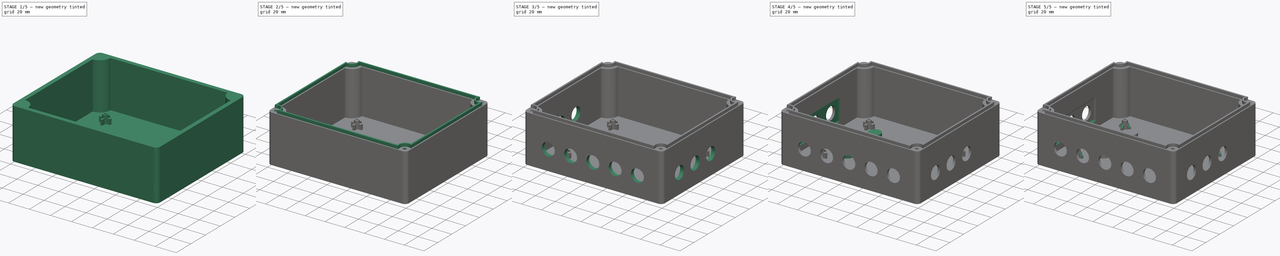
[diagram: build sequence overview — one tinted view per stage of 5, left to right]
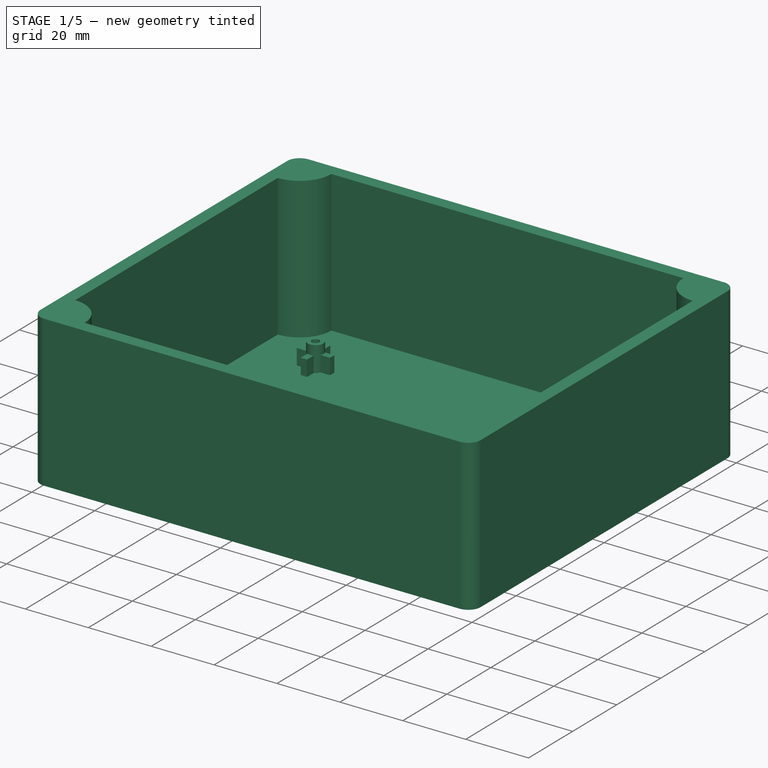
[diagram: stage 1 of 5 — iso view after this stage's code; geometry added in this stage tinted green]
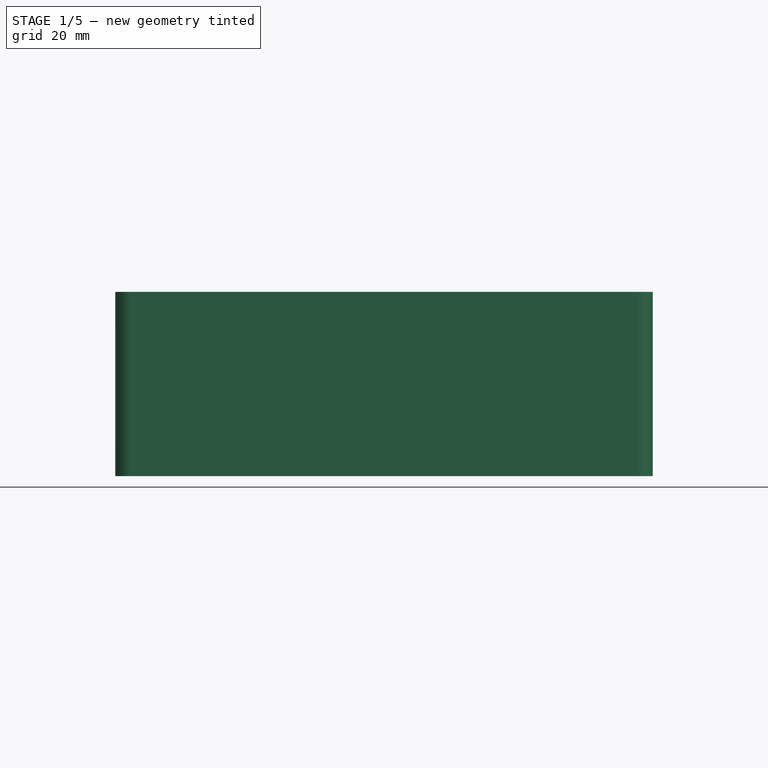
[diagram: stage 1 of 5 — front view after this stage's code; geometry added in this stage tinted green]
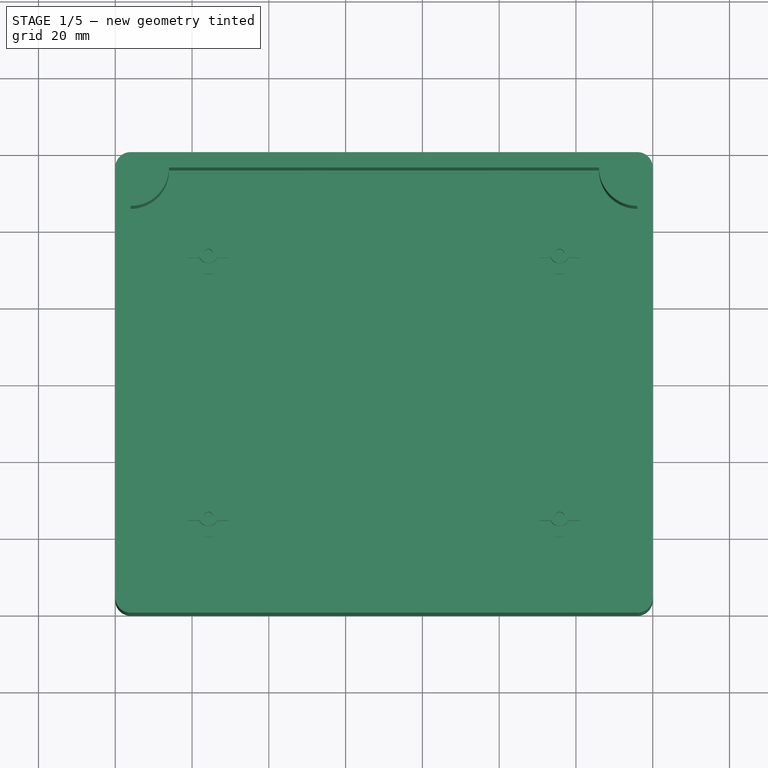
[diagram: stage 1 of 5 — top view after this stage's code; geometry added in this stage tinted green]
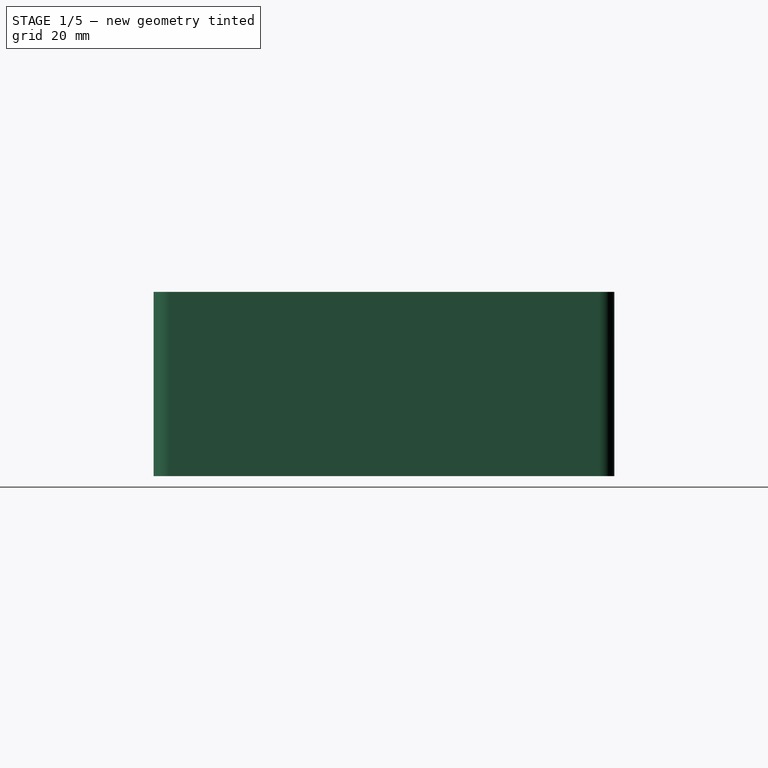
[diagram: stage 1 of 5 — right view after this stage's code; geometry added in this stage tinted green]
FCSTD DOCUMENT  (FreeCAD 0.19R24267 +99 (Git))
Label: outdoor_unit_case
License: All rights reserved
LicenseURL: http://en.wikipedia.org/wiki/All_rights_reserved
objects: Sketcher::SketchObject×16, PartDesign::Pad×8, PartDesign::Pocket×8, PartDesign::Chamfer×3, PartDesign::Body×1
note: 55 computed .brp shape members not serialized (recipe doc carries the construction recipe); baked Part::Feature solids carry a one-line shape summary decoded from their .brp

FEATURE [Sketcher::SketchObject] Sketch
  FullyConstrained = true
  MapMode = 5
  Support = -> [XY_Plane]
  sketch-geometry (16):
    g0: LineSegment StartX=4 StartY=0 StartZ=0 EndX=136 EndY=0 EndZ=0
    g1: LineSegment StartX=140 StartY=4 StartZ=0 EndX=140 EndY=116 EndZ=0
    g2: LineSegment StartX=136 StartY=120 StartZ=0 EndX=4 EndY=120 EndZ=0
    g3: ArcOfCircle CenterX=136 CenterY=116 CenterZ=0 NormalX=0 NormalY=0 NormalZ=1 AngleXU=0 Radius=4 StartAngle=1.3e-15 EndAngle=1.5708
    g4: ArcOfCircle CenterX=4 CenterY=116 CenterZ=0 NormalX=0 NormalY=0 NormalZ=1 AngleXU=0 Radius=4 StartAngle=1.5708 EndAngle=3.1416
    g5: ArcOfCircle CenterX=4 CenterY=4 CenterZ=0 NormalX=0 NormalY=0 NormalZ=1 AngleXU=0 Radius=4 StartAngle=3.14159 EndAngle=4.71239
    g6: ArcOfCircle CenterX=136 CenterY=4 CenterZ=0 NormalX=0 NormalY=0 NormalZ=1 AngleXU=0 Radius=4 StartAngle=4.71239 EndAngle=6.28319
    g7: LineSegment StartX=4 StartY=116 StartZ=0 EndX=4 EndY=4 EndZ=0
    g8: LineSegment StartX=4 StartY=4 StartZ=0 EndX=136 EndY=4 EndZ=0
    g9: LineSegment StartX=136 StartY=4 StartZ=0 EndX=136 EndY=116 EndZ=0
    g10: LineSegment StartX=136 StartY=116 StartZ=0 EndX=4 EndY=116 EndZ=0
    g11: LineSegment StartX=0 StartY=116 StartZ=0 EndX=0 EndY=4 EndZ=0
    g12: LineSegment StartX=4 StartY=4 StartZ=0 EndX=0 EndY=4 EndZ=0
    g13: LineSegment StartX=4 StartY=116 StartZ=0 EndX=0 EndY=116 EndZ=0
    g14: LineSegment StartX=136 StartY=116 StartZ=0 EndX=140 EndY=116 EndZ=0
    g15: LineSegment StartX=136 StartY=4 StartZ=0 EndX=140 EndY=4 EndZ=0
  constraints (38):
    c: Horizontal(g0)
    c: Horizontal(g2)
    c: Vertical(g1)
    c: Tangent(g2,g3) = -1.5708
    c: Tangent(g1,g3) = -1.5708
    c: Tangent(g2,g4) = -1.5708
    c: Tangent(g0,g5) = -1.5708
    c: Tangent(g0,g6) = -1.5708
    c: Tangent(g1,g6) = -1.5708
    c: Coincident(g7,g4)
    c: Coincident(g7,g5)
    c: Vertical(g7)
    c: Coincident(g8,g5)
    c: Coincident(g8,g6)
    c: Horizontal(g8)
    c: Coincident(g9,g6)
    c: Coincident(g9,g3)
    c: Vertical(g9)
    c: Coincident(g10,g3)
    c: Coincident(g10,g4)
    c: PointOnObject(g0,g-1)
    c: DistanceY(g0,g2) = 120
    c: Horizontal(g10)
    c: Coincident(g11,g4)
    c: Coincident(g11,g5)
    c: Vertical(g11)
    c: PointOnObject(g5,g-2)
    c: DistanceX(g5,g1) = 140
    c: Coincident(g12,g5)
    c: Coincident(g12,g5)
    c: Horizontal(g12)
    c: Coincident(g13,g4)
    c: Coincident(g13,g4)
    c: Coincident(g14,g3)
    c: Coincident(g14,g1)
    c: Coincident(g15,g6)
    c: Coincident(g15,g1)
    c: DistanceX(g12,g12) = 4
FEATURE [PartDesign::Pad] Pad
  Direction = (1,1,1)
  Length = 3
  Length2 = 100
  Profile = -> Sketch
  Type = 0
FEATURE [Sketcher::SketchObject] Sketch001
  FullyConstrained = true
  MapMode = 5
  Placement = pos=(0,0,3) rot=(0,0,1;0rad)
  Support = -> [Pad]
  sketch-geometry (20):
    g0: LineSegment StartX=4 StartY=120 StartZ=0 EndX=136 EndY=120 EndZ=0
    g1: LineSegment StartX=140 StartY=116 StartZ=0 EndX=140 EndY=4 EndZ=0
    g2: LineSegment StartX=136 StartY=0 StartZ=0 EndX=4 EndY=0 EndZ=0
    g3: LineSegment StartX=0 StartY=4 StartZ=0 EndX=0 EndY=116 EndZ=0
    g4: ArcOfCircle CenterX=136 CenterY=116 CenterZ=0 NormalX=0 NormalY=0 NormalZ=1 AngleXU=0 Radius=4 StartAngle=-1.8e-15 EndAngle=1.5708
    g5: ArcOfCircle CenterX=4 CenterY=116 CenterZ=0 NormalX=0 NormalY=0 NormalZ=1 AngleXU=0 Radius=4 StartAngle=1.5708 EndAngle=3.14159
    g6: ArcOfCircle CenterX=4 CenterY=4 CenterZ=0 NormalX=0 NormalY=0 NormalZ=1 AngleXU=0 Radius=4 StartAngle=3.14159 EndAngle=4.71239
    g7: ArcOfCircle CenterX=136 CenterY=4 CenterZ=0 NormalX=0 NormalY=0 NormalZ=1 AngleXU=0 Radius=4 StartAngle=4.71239 EndAngle=6.28319
    g8: LineSegment StartX=14 StartY=116 StartZ=0 EndX=126 EndY=116 EndZ=0
    g9: LineSegment StartX=136 StartY=106 StartZ=0 EndX=136 EndY=14 EndZ=0
    g10: LineSegment StartX=126 StartY=4 StartZ=0 EndX=14 EndY=4 EndZ=0
    g11: LineSegment StartX=4 StartY=14 StartZ=0 EndX=4 EndY=106 EndZ=0
    g12: LineSegment StartX=4 StartY=4 StartZ=0 EndX=4 EndY=116 EndZ=0
    g13: LineSegment StartX=4 StartY=116 StartZ=0 EndX=136 EndY=116 EndZ=0
    g14: LineSegment StartX=136 StartY=116 StartZ=0 EndX=136 EndY=4 EndZ=0
    g15: LineSegment StartX=4 StartY=4 StartZ=0 EndX=136 EndY=4 EndZ=0
    g16: ArcOfCircle CenterX=4 CenterY=116 CenterZ=0 NormalX=0 NormalY=0 NormalZ=1 AngleXU=0 Radius=10 StartAngle=4.71239 EndAngle=6.28319
    g17: ArcOfCircle CenterX=136 CenterY=116 CenterZ=0 NormalX=0 NormalY=0 NormalZ=1 AngleXU=0 Radius=10 StartAngle=3.14159 EndAngle=4.71239
    g18: ArcOfCircle CenterX=136 CenterY=4 CenterZ=0 NormalX=0 NormalY=0 NormalZ=1 AngleXU=0 Radius=10 StartAngle=1.5708 EndAngle=3.14159
    g19: ArcOfCircle CenterX=4 CenterY=4 CenterZ=0 NormalX=0 NormalY=0 NormalZ=1 AngleXU=0 Radius=10 StartAngle=0 EndAngle=1.5708
  constraints (52):
    c: Horizontal(g0)
    c: Horizontal(g2)
    c: Vertical(g1)
    c: Vertical(g3)
    c: Tangent(g0,g4) = 1.5708
    c: Tangent(g1,g4) = 1.5708
    c: Tangent(g0,g5) = 1.5708
    c: Tangent(g3,g5) = 1.5708
    c: Tangent(g3,g6) = 1.5708
    c: Tangent(g2,g6) = 1.5708
    c: Tangent(g2,g7) = 1.5708
    c: Tangent(g1,g7) = 1.5708
    c: PointOnObject(g2,g-1)
    c: PointOnObject(g3,g-2)
    c: DistanceX(g3,g6) = 4
    c: DistanceY(g0) = 120
    c: DistanceX(g3,g1) = 140
    c: Horizontal(g8)
    c: Horizontal(g10)
    c: Vertical(g9)
    c: DistanceX(g3,g11) = 4
    c: DistanceY(g10) = 4
    c: Coincident(g12,g6)
    c: Coincident(g12,g5)
    c: Vertical(g12)
    c: Coincident(g13,g5)
    c: Coincident(g13,g4)
    c: Horizontal(g13)
    c: Coincident(g14,g4)
    c: Coincident(g14,g7)
    c: Vertical(g14)
    c: Coincident(g15,g6)
    c: Coincident(g15,g7)
    c: Coincident(g16,g5)
    c: Coincident(g16,g11)
    c: Coincident(g16,g8)
    c: Coincident(g17,g4)
    c: Coincident(g17,g8)
    c: Coincident(g17,g9)
    c: Coincident(g18,g7)
    c: Coincident(g18,g9)
    c: Coincident(g18,g10)
    c: Coincident(g19,g6)
    c: Coincident(g19,g10)
    c: Coincident(g19,g11)
    c: Equal(g19,g16)
    c: Equal(g16,g17)
    c: Equal(g17,g18)
    c: Radius(g19) = 10
    c: Vertical(g11)
    c: DistanceX(g11,g9) = 132
    c: DistanceY(g10,g8) = 112
FEATURE [PartDesign::Pad] Pad001
  BaseFeature = -> Pad
  Direction = (1,1,1)
  Length = 45
  Length2 = 100
  Profile = -> Sketch001
  Type = 0
FEATURE [Sketcher::SketchObject] Sketch002
  FullyConstrained = true
  MapMode = 5
  Placement = pos=(0,0,3) rot=(0,0,1;0rad)
  Support = -> [Pad001]
  sketch-geometry (12):
    g0: LineSegment StartX=24.25 StartY=94.25 StartZ=0 EndX=115.75 EndY=94.25 EndZ=0
    g1: LineSegment StartX=115.75 StartY=94.25 StartZ=0 EndX=115.75 EndY=25.75 EndZ=0
    g2: LineSegment StartX=115.75 StartY=25.75 StartZ=0 EndX=24.25 EndY=25.75 EndZ=0
    g3: LineSegment StartX=24.25 StartY=25.75 StartZ=0 EndX=24.25 EndY=94.25 EndZ=0
    g4: Circle CenterX=24.25 CenterY=94.25 CenterZ=0 NormalX=0 NormalY=0 NormalZ=1 AngleXU=0 Radius=1.2
    g5: Circle CenterX=24.25 CenterY=94.25 CenterZ=0 NormalX=0 NormalY=0 NormalZ=1 AngleXU=0 Radius=2.5
    g6: Circle CenterX=115.75 CenterY=94.25 CenterZ=0 NormalX=0 NormalY=0 NormalZ=1 AngleXU=0 Radius=1.2
    g7: Circle CenterX=115.75 CenterY=94.25 CenterZ=0 NormalX=0 NormalY=0 NormalZ=1 AngleXU=0 Radius=2.5
    g8: Circle CenterX=24.25 CenterY=25.75 CenterZ=0 NormalX=0 NormalY=0 NormalZ=1 AngleXU=0 Radius=1.2
    g9: Circle CenterX=24.25 CenterY=25.75 CenterZ=0 NormalX=0 NormalY=0 NormalZ=1 AngleXU=0 Radius=2.5
    g10: Circle CenterX=115.75 CenterY=25.75 CenterZ=0 NormalX=0 NormalY=0 NormalZ=1 AngleXU=0 Radius=1.2
    g11: Circle CenterX=115.75 CenterY=25.75 CenterZ=0 NormalX=0 NormalY=0 NormalZ=1 AngleXU=0 Radius=2.5
  constraints (28):
    c: Coincident(g3,g0)
    c: Horizontal(g0)
    c: Horizontal(g2)
    c: Vertical(g1)
    c: Vertical(g3)
    c: Coincident(g4,g0)
    c: Coincident(g5,g4)
    c: Radius(g4) = 1.2
    c: Radius(g5) = 2.5
    c: Coincident(g7,g6)
    c: Equal(g4,g6) = 1.2
    c: Equal(g5,g7) = 2.5
    c: Coincident(g7,g0)
    c: Coincident(g9,g8)
    c: Equal(g4,g8) = 1.2
    c: Equal(g5,g9) = 2.5
    c: Coincident(g9,g2)
    c: Coincident(g11,g10)
    c: Equal(g4,g10) = 1.2
    c: Equal(g5,g11) = 2.5
    c: Coincident(g11,g1)
    c: Coincident(g1,g6)
    c: Coincident(g8,g3)
    c: Coincident(g2,g10)
    c: DistanceY(g1,g1) = 68.5
    c: DistanceX(g2,g2) = 91.5
    c: DistanceX(g-1,g8) = 24.25
    c: DistanceY(g-1,g8) = 25.75
FEATURE [PartDesign::Pad] Pad002
  BaseFeature = -> Pad001
  Direction = (1,1,1)
  Length = 8
  Length2 = 100
  Profile = -> Sketch002
  Type = 0
FEATURE [Sketcher::SketchObject] Sketch003
  FullyConstrained = true
  MapMode = 5
  Placement = pos=(0,0,3) rot=(0,0,1;0rad)
  Support = -> [Pad002]
  sketch-geometry (68):
    g0: LineSegment StartX=24.25 StartY=94.25 StartZ=0 EndX=115.75 EndY=94.25 EndZ=0
    g1: LineSegment StartX=115.75 StartY=94.25 StartZ=0 EndX=115.75 EndY=25.75 EndZ=0
    g2: LineSegment StartX=115.75 StartY=25.75 StartZ=0 EndX=24.25 EndY=25.75 EndZ=0
    g3: LineSegment StartX=24.25 StartY=25.75 StartZ=0 EndX=24.25 EndY=94.25 EndZ=0
    g4: ArcOfCircle CenterX=24.25 CenterY=94.25 CenterZ=0 NormalX=0 NormalY=0 NormalZ=1 AngleXU=0 Radius=2.5 StartAngle=2.73008 EndAngle=3.55311
    g5: LineSegment StartX=26.5413 StartY=95.25 StartZ=0 EndX=29.5413 EndY=95.25 EndZ=0
    g6: LineSegment StartX=29.5413 StartY=95.25 StartZ=0 EndX=29.5413 EndY=93.25 EndZ=0
    g7: LineSegment StartX=29.5413 StartY=93.25 StartZ=0 EndX=26.5413 EndY=93.25 EndZ=0
    g8: LineSegment StartX=25.25 StartY=96.5413 StartZ=0 EndX=25.25 EndY=99.5413 EndZ=0
    g9: LineSegment StartX=25.25 StartY=99.5413 StartZ=0 EndX=23.25 EndY=99.5413 EndZ=0
    g10: LineSegment StartX=23.25 StartY=99.5413 StartZ=0 EndX=23.25 EndY=96.5413 EndZ=0
    g11: LineSegment StartX=21.9587 StartY=95.25 StartZ=0 EndX=18.9587 EndY=95.25 EndZ=0
    g12: LineSegment StartX=18.9587 StartY=95.25 StartZ=0 EndX=18.9587 EndY=93.25 EndZ=0
    g13: LineSegment StartX=18.9587 StartY=93.25 StartZ=0 EndX=21.9587 EndY=93.25 EndZ=0
    g14: LineSegment StartX=23.25 StartY=91.9587 StartZ=0 EndX=23.25 EndY=88.9587 EndZ=0
    g15: LineSegment StartX=23.25 StartY=88.9587 StartZ=0 EndX=25.25 EndY=88.9587 EndZ=0
    g16: LineSegment StartX=25.25 StartY=88.9587 StartZ=0 EndX=25.25 EndY=91.9587 EndZ=0
    g17: ArcOfCircle CenterX=24.25 CenterY=94.25 CenterZ=0 NormalX=0 NormalY=0 NormalZ=1 AngleXU=0 Radius=2.5 StartAngle=4.30087 EndAngle=5.12391
    g18: ArcOfCircle CenterX=24.25 CenterY=94.25 CenterZ=0 NormalX=0 NormalY=0 NormalZ=1 AngleXU=0 Radius=2.5 StartAngle=5.87167 EndAngle=6.6947
    g19: ArcOfCircle CenterX=24.25 CenterY=94.25 CenterZ=0 NormalX=0 NormalY=0 NormalZ=1 AngleXU=0 Radius=2.5 StartAngle=1.15928 EndAngle=1.98231
    g20: ArcOfCircle CenterX=115.75 CenterY=94.25 CenterZ=0 NormalX=0 NormalY=0 NormalZ=1 AngleXU=0 Radius=2.5 StartAngle=2.73008 EndAngle=3.55311
    g21: LineSegment StartX=118.041 StartY=95.25 StartZ=0 EndX=121.041 EndY=95.25 EndZ=0
    g22: LineSegment StartX=121.041 StartY=95.25 StartZ=0 EndX=121.041 EndY=93.25 EndZ=0
    g23: LineSegment StartX=121.041 StartY=93.25 StartZ=0 EndX=118.041 EndY=93.25 EndZ=0
    g24: LineSegment StartX=116.75 StartY=96.5413 StartZ=0 EndX=116.75 EndY=99.5413 EndZ=0
    g25: LineSegment StartX=116.75 StartY=99.5413 StartZ=0 EndX=114.75 EndY=99.5413 EndZ=0
    g26: LineSegment StartX=114.75 StartY=99.5413 StartZ=0 EndX=114.75 EndY=96.5413 EndZ=0
    g27: LineSegment StartX=113.459 StartY=95.25 StartZ=0 EndX=110.459 EndY=95.25 EndZ=0
    g28: LineSegment StartX=110.459 StartY=95.25 StartZ=0 EndX=110.459 EndY=93.25 EndZ=0
    g29: LineSegment StartX=110.459 StartY=93.25 StartZ=0 EndX=113.459 EndY=93.25 EndZ=0
    g30: LineSegment StartX=114.75 StartY=91.9587 StartZ=0 EndX=114.75 EndY=88.9587 EndZ=0
    g31: LineSegment StartX=114.75 StartY=88.9587 StartZ=0 EndX=116.75 EndY=88.9587 EndZ=0
    g32: LineSegment StartX=116.75 StartY=88.9587 StartZ=0 EndX=116.75 EndY=91.9587 EndZ=0
    g33: ArcOfCircle CenterX=115.75 CenterY=94.25 CenterZ=0 NormalX=0 NormalY=0 NormalZ=1 AngleXU=0 Radius=2.5 StartAngle=4.30087 EndAngle=5.12391
    g34: ArcOfCircle CenterX=115.75 CenterY=94.25 CenterZ=0 NormalX=0 NormalY=0 NormalZ=1 AngleXU=0 Radius=2.5 StartAngle=5.87167 EndAngle=6.6947
    g35: ArcOfCircle CenterX=115.75 CenterY=94.25 CenterZ=0 NormalX=0 NormalY=0 NormalZ=1 AngleXU=0 Radius=2.5 StartAngle=1.15928 EndAngle=1.98231
    g36: ArcOfCircle CenterX=24.25 CenterY=25.75 CenterZ=0 NormalX=0 NormalY=0 NormalZ=1 AngleXU=0 Radius=2.5 StartAngle=2.73008 EndAngle=3.55311
    g37: LineSegment StartX=26.5413 StartY=26.75 StartZ=0 EndX=29.5413 EndY=26.75 EndZ=0
    g38: LineSegment StartX=29.5413 StartY=26.75 StartZ=0 EndX=29.5413 EndY=24.75 EndZ=0
    g39: LineSegment StartX=29.5413 StartY=24.75 StartZ=0 EndX=26.5413 EndY=24.75 EndZ=0
    g40: LineSegment StartX=25.25 StartY=28.0413 StartZ=0 EndX=25.25 EndY=31.0413 EndZ=0
    g41: LineSegment StartX=25.25 StartY=31.0413 StartZ=0 EndX=23.25 EndY=31.0413 EndZ=0
    g42: LineSegment StartX=23.25 StartY=31.0413 StartZ=0 EndX=23.25 EndY=28.0413 EndZ=0
    g43: LineSegment StartX=21.9587 StartY=26.75 StartZ=0 EndX=18.9587 EndY=26.75 EndZ=0
    g44: LineSegment StartX=18.9587 StartY=26.75 StartZ=0 EndX=18.9587 EndY=24.75 EndZ=0
    g45: LineSegment StartX=18.9587 StartY=24.75 StartZ=0 EndX=21.9587 EndY=24.75 EndZ=0
    g46: LineSegment StartX=23.25 StartY=23.4587 StartZ=0 EndX=23.25 EndY=20.4587 EndZ=0
    g47: LineSegment StartX=23.25 StartY=20.4587 StartZ=0 EndX=25.25 EndY=20.4587 EndZ=0
    g48: LineSegment StartX=25.25 StartY=20.4587 StartZ=0 EndX=25.25 EndY=23.4587 EndZ=0
    g49: ArcOfCircle CenterX=24.25 CenterY=25.75 CenterZ=0 NormalX=0 NormalY=0 NormalZ=1 AngleXU=0 Radius=2.5 StartAngle=4.30087 EndAngle=5.12391
    g50: ArcOfCircle CenterX=24.25 CenterY=25.75 CenterZ=0 NormalX=0 NormalY=0 NormalZ=1 AngleXU=0 Radius=2.5 StartAngle=5.87167 EndAngle=6.6947
    g51: ArcOfCircle CenterX=24.25 CenterY=25.75 CenterZ=0 NormalX=0 NormalY=0 NormalZ=1 AngleXU=0 Radius=2.5 StartAngle=1.15928 EndAngle=1.98231
    g52: ArcOfCircle CenterX=115.75 CenterY=25.75 CenterZ=0 NormalX=0 NormalY=0 NormalZ=1 AngleXU=0 Radius=2.5 StartAngle=2.73008 EndAngle=3.55311
    g53: LineSegment StartX=118.041 StartY=26.75 StartZ=0 EndX=121.041 EndY=26.75 EndZ=0
    g54: LineSegment StartX=121.041 StartY=26.75 StartZ=0 EndX=121.041 EndY=24.75 EndZ=0
    g55: LineSegment StartX=121.041 StartY=24.75 StartZ=0 EndX=118.041 EndY=24.75 EndZ=0
    g56: LineSegment StartX=116.75 StartY=28.0413 StartZ=0 EndX=116.75 EndY=31.0413 EndZ=0
    g57: LineSegment StartX=116.75 StartY=31.0413 StartZ=0 EndX=114.75 EndY=31.0413 EndZ=0
    g58: LineSegment StartX=114.75 StartY=31.0413 StartZ=0 EndX=114.75 EndY=28.0413 EndZ=0
    g59: LineSegment StartX=113.459 StartY=26.75 StartZ=0 EndX=110.459 EndY=26.75 EndZ=0
    g60: LineSegment StartX=110.459 StartY=26.75 StartZ=0 EndX=110.459 EndY=24.75 EndZ=0
    g61: LineSegment StartX=110.459 StartY=24.75 StartZ=0 EndX=113.459 EndY=24.75 EndZ=0
    g62: LineSegment StartX=114.75 StartY=23.4587 StartZ=0 EndX=114.75 EndY=20.4587 EndZ=0
    g63: LineSegment StartX=114.75 StartY=20.4587 StartZ=0 EndX=116.75 EndY=20.4587 EndZ=0
    g64: LineSegment StartX=116.75 StartY=20.4587 StartZ=0 EndX=116.75 EndY=23.4587 EndZ=0
    g65: ArcOfCircle CenterX=115.75 CenterY=25.75 CenterZ=0 NormalX=0 NormalY=0 NormalZ=1 AngleXU=0 Radius=2.5 StartAngle=4.30087 EndAngle=5.12391
    g66: ArcOfCircle CenterX=115.75 CenterY=25.75 CenterZ=0 NormalX=0 NormalY=0 NormalZ=1 AngleXU=0 Radius=2.5 StartAngle=5.87167 EndAngle=6.6947
    g67: ArcOfCircle CenterX=115.75 CenterY=25.75 CenterZ=0 NormalX=0 NormalY=0 NormalZ=1 AngleXU=0 Radius=2.5 StartAngle=1.15928 EndAngle=1.98231
  constraints (220):
    c: Coincident(g0,g1)
    c: Coincident(g1,g2)
    c: Coincident(g2,g3)
    c: Coincident(g3,g0)
    c: Horizontal(g0)
    c: Horizontal(g2)
    c: Vertical(g1)
    c: Vertical(g3)
    c: DistanceY(g1,g1) = 68.5
    c: DistanceX(g2,g2) = 91.5
    c: DistanceY(g-1,g2) = 25.75
    c: DistanceX(g-1,g2) = 24.25
    c: Coincident(g4,g0)
    c: Radius(g4) = 2.5
    c: PointOnObject(g5,g4)
    c: Horizontal(g5)
    c: Coincident(g6,g5)
    c: Vertical(g6)
    c: Coincident(g7,g6)
    c: PointOnObject(g7,g4)
    c: Horizontal(g7)
    c: PointOnObject(g8,g4)
    c: Vertical(g8)
    c: Coincident(g9,g8)
    c: Horizontal(g9)
    c: Coincident(g10,g9)
    c: Vertical(g10)
    c: Horizontal(g11)
    c: Coincident(g12,g11)
    c: Vertical(g12)
    c: Coincident(g13,g12)
    c: Horizontal(g13)
    c: Vertical(g14)
    c: Coincident(g15,g14)
    c: Horizontal(g15)
    c: Coincident(g16,g15)
    c: PointOnObject(g16,g4)
    c: Vertical(g16)
    c: Equal(g11,g13)
    c: Equal(g13,g10)
    c: Equal(g10,g8)
    c: Equal(g8,g5)
    c: Equal(g5,g7)
    c: Equal(g7,g16)
    c: Equal(g16,g14)
    c: Equal(g12,g9)
    c: Equal(g9,g6)
    c: Equal(g6,g15)
    c: DistanceX(g9,g9) = 2
    c: DistanceY(g8,g8) = 3
    c: Coincident(g4,g11)
    c: Coincident(g19,g10)
    c: Equal(g4,g17)
    c: Coincident(g4,g13)
    c: Coincident(g17,g14)
    c: Coincident(g4,g17)
    c: Equal(g17,g18)
    c: PointOnObject(g17,g16)
    c: PointOnObject(g18,g7)
    c: Coincident(g17,g18)
    c: Equal(g18,g19)
    c: PointOnObject(g18,g5)
    c: PointOnObject(g19,g8)
    c: Coincident(g18,g19)
    c: Equal(g4,g20) = 2.5
    c: PointOnObject(g21,g20)
    c: Horizontal(g21)
    c: Coincident(g22,g21)
    c: Vertical(g22)
    c: Coincident(g23,g22)
    c: PointOnObject(g23,g20)
    c: Horizontal(g23)
    c: PointOnObject(g24,g20)
    c: Vertical(g24)
    c: Coincident(g25,g24)
    c: Horizontal(g25)
    c: Coincident(g26,g25)
    c: Vertical(g26)
    c: Horizontal(g27)
    c: Coincident(g28,g27)
    c: Vertical(g28)
    c: Coincident(g29,g28)
    c: Horizontal(g29)
    c: Vertical(g30)
    c: Coincident(g31,g30)
    c: Horizontal(g31)
    c: Coincident(g32,g31)
    c: PointOnObject(g32,g20)
    c: Vertical(g32)
    c: Equal(g27,g29)
    c: Equal(g29,g26)
    c: Equal(g26,g24)
    c: Equal(g24,g21)
    c: Equal(g21,g23)
    c: Equal(g23,g32)
    c: Equal(g32,g30)
    c: Equal(g28,g25)
    c: Equal(g25,g22)
    c: Equal(g22,g31)
    c: Equal(g9,g25) = 2
    c: Equal(g8,g24) = 3
    c: Coincident(g20,g27)
    c: Coincident(g35,g26)
    c: Equal(g20,g33)
    c: Coincident(g20,g29)
    c: Coincident(g33,g30)
    c: Coincident(g20,g33)
    c: Equal(g33,g34)
    c: PointOnObject(g33,g32)
    c: PointOnObject(g34,g23)
    c: Coincident(g33,g34)
    c: Equal(g34,g35)
    c: PointOnObject(g34,g21)
    c: PointOnObject(g35,g24)
    c: Coincident(g34,g35)
    c: Coincident(g35,g0)
    c: Equal(g4,g36) = 2.5
    c: PointOnObject(g37,g36)
    c: Horizontal(g37)
    c: Coincident(g38,g37)
    c: Vertical(g38)
    c: Coincident(g39,g38)
    c: PointOnObject(g39,g36)
    c: Horizontal(g39)
    c: PointOnObject(g40,g36)
    c: Vertical(g40)
    c: Coincident(g41,g40)
    c: Horizontal(g41)
    c: Coincident(g42,g41)
    c: Vertical(g42)
    c: Horizontal(g43)
    c: Coincident(g44,g43)
    c: Vertical(g44)
    c: Coincident(g45,g44)
    c: Horizontal(g45)
    c: Vertical(g46)
    c: Coincident(g47,g46)
    c: Horizontal(g47)
    c: Coincident(g48,g47)
    c: PointOnObject(g48,g36)
    c: Vertical(g48)
    c: Equal(g43,g45)
    c: Equal(g45,g42)
    c: Equal(g42,g40)
    c: Equal(g40,g37)
    c: Equal(g37,g39)
    c: Equal(g39,g48)
    c: Equal(g48,g46)
    c: Equal(g44,g41)
    c: Equal(g41,g38)
    c: Equal(g38,g47)
    c: Equal(g9,g41) = 2
    c: Equal(g8,g40) = 3
    c: Coincident(g36,g43)
    c: Coincident(g51,g42)
    c: Equal(g36,g49)
    c: Coincident(g36,g45)
    c: Coincident(g49,g46)
    c: Coincident(g36,g49)
    c: Equal(g49,g50)
    c: PointOnObject(g49,g48)
    c: PointOnObject(g50,g39)
    c: Coincident(g49,g50)
    c: Equal(g50,g51)
    c: PointOnObject(g50,g37)
    c: PointOnObject(g51,g40)
    c: Coincident(g50,g51)
    c: Coincident(g51,g2)
    c: Equal(g4,g52) = 2.5
    c: PointOnObject(g53,g52)
    c: Horizontal(g53)
    c: Coincident(g54,g53)
    c: Vertical(g54)
    c: Coincident(g55,g54)
    c: PointOnObject(g55,g52)
    c: Horizontal(g55)
    c: PointOnObject(g56,g52)
    c: Vertical(g56)
    c: Coincident(g57,g56)
    c: Horizontal(g57)
    c: Coincident(g58,g57)
    c: Vertical(g58)
    c: Horizontal(g59)
    c: Coincident(g60,g59)
    c: Vertical(g60)
    c: Coincident(g61,g60)
    c: Horizontal(g61)
    c: Vertical(g62)
    c: Coincident(g63,g62)
    c: Horizontal(g63)
    c: Coincident(g64,g63)
    c: PointOnObject(g64,g52)
    c: Vertical(g64)
    c: Equal(g59,g61)
    c: Equal(g61,g58)
    c: Equal(g58,g56)
    c: Equal(g56,g53)
    c: Equal(g53,g55)
    c: Equal(g55,g64)
    c: Equal(g64,g62)
    c: Equal(g60,g57)
    c: Equal(g57,g54)
    c: Equal(g54,g63)
    c: Equal(g9,g57) = 2
    c: Equal(g8,g56) = 3
    c: Coincident(g52,g59)
    c: Coincident(g67,g58)
    c: Equal(g52,g65)
    c: Coincident(g52,g61)
    c: Coincident(g65,g62)
    c: Coincident(g52,g65)
    c: Equal(g65,g66)
    c: PointOnObject(g65,g64)
    c: PointOnObject(g66,g55)
    c: Coincident(g65,g66)
    c: Equal(g66,g67)
    c: PointOnObject(g66,g53)
    c: PointOnObject(g67,g56)
    c: Coincident(g66,g67)
    c: Coincident(g67,g1)
FEATURE [PartDesign::Pad] Pad003
  BaseFeature = -> Pad002
  Direction = (1,1,1)
  Length = 5
  Length2 = 100
  Profile = -> Sketch003
  Type = 0
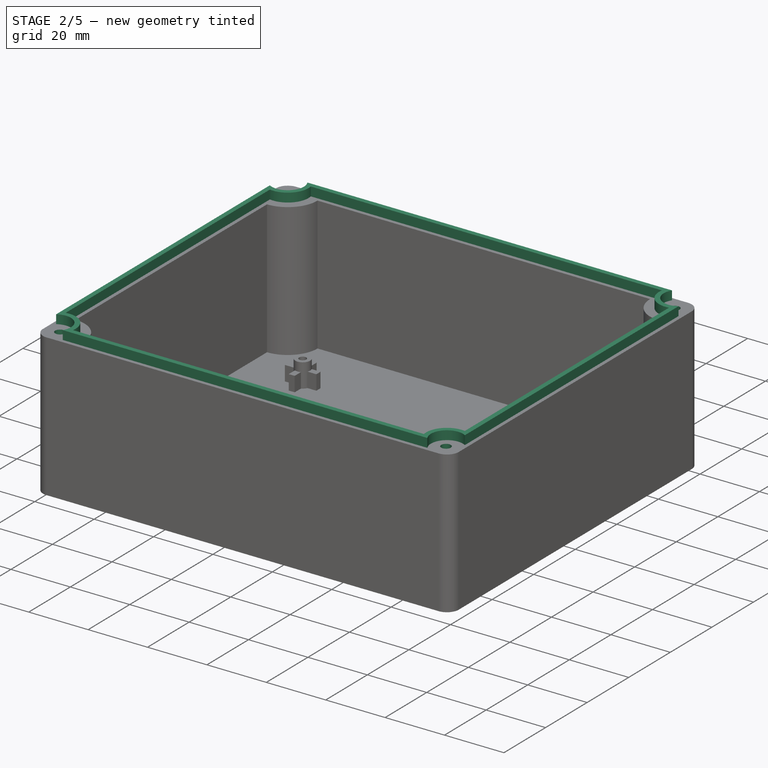
[diagram: stage 2 of 5 — iso view after this stage's code; geometry added in this stage tinted green]
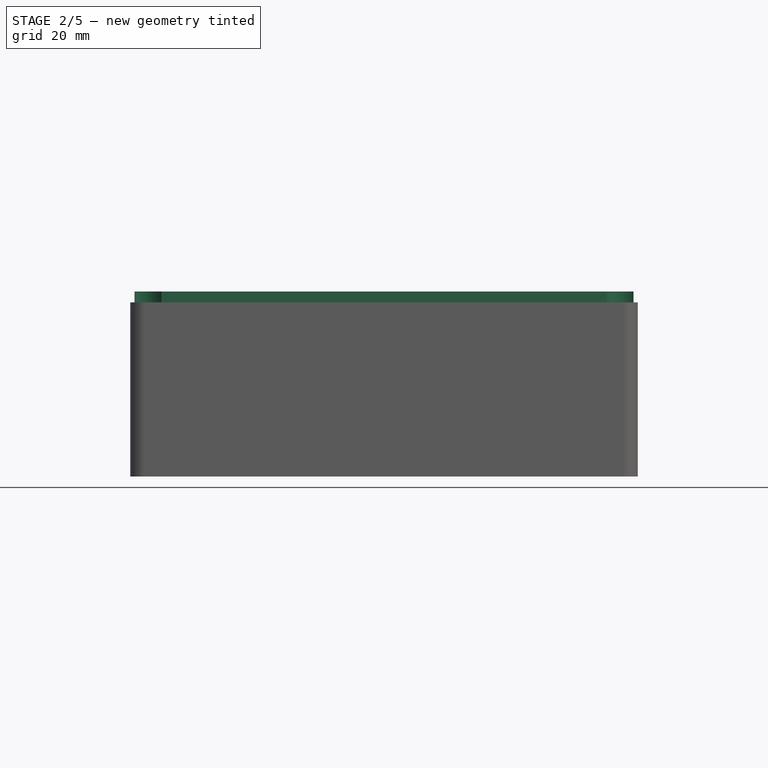
[diagram: stage 2 of 5 — front view after this stage's code; geometry added in this stage tinted green]
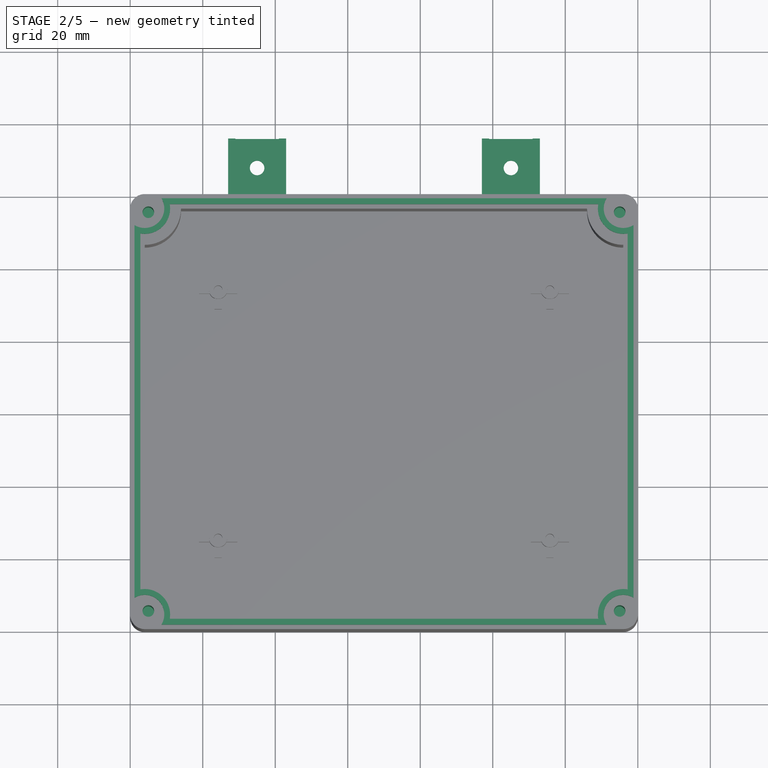
[diagram: stage 2 of 5 — top view after this stage's code; geometry added in this stage tinted green]
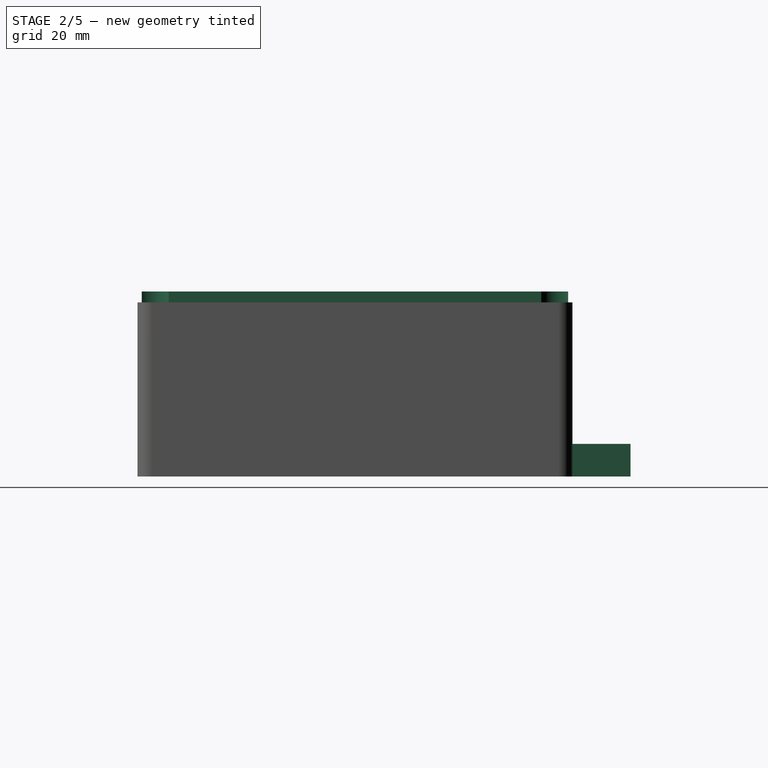
[diagram: stage 2 of 5 — right view after this stage's code; geometry added in this stage tinted green]
FEATURE [Sketcher::SketchObject] Sketch004
  FullyConstrained = true
  MapMode = 5
  Placement = pos=(0,0,48) rot=(0,0,1;0rad)
  Support = -> [Pad003]
  sketch-geometry (8):
    g0: Circle CenterX=5 CenterY=115 CenterZ=0 NormalX=0 NormalY=0 NormalZ=1 AngleXU=0 Radius=1.6
    g1: LineSegment StartX=5 StartY=115 StartZ=0 EndX=5 EndY=5 EndZ=0
    g2: LineSegment StartX=5 StartY=5 StartZ=0 EndX=135 EndY=5 EndZ=0
    g3: LineSegment StartX=135 StartY=5 StartZ=0 EndX=135 EndY=115 EndZ=0
    g4: LineSegment StartX=135 StartY=115 StartZ=0 EndX=5 EndY=115 EndZ=0
    g5: Circle CenterX=135 CenterY=115 CenterZ=0 NormalX=0 NormalY=0 NormalZ=1 AngleXU=0 Radius=1.6
    g6: Circle CenterX=5 CenterY=5 CenterZ=0 NormalX=0 NormalY=0 NormalZ=1 AngleXU=0 Radius=1.6
    g7: Circle CenterX=135 CenterY=5 CenterZ=0 NormalX=0 NormalY=0 NormalZ=1 AngleXU=0 Radius=1.6
  constraints (20):
    c: Vertical(g1)
    c: Coincident(g2,g1)
    c: Horizontal(g2)
    c: Coincident(g3,g2)
    c: Vertical(g3)
    c: Coincident(g4,g3)
    c: Coincident(g4,g1)
    c: Horizontal(g4)
    c: DistanceX(g-1,g1) = 5
    c: DistanceY(g-1,g1) = 5
    c: DistanceY(g1,g1) = 110
    c: DistanceX(g2,g2) = 130
    c: Coincident(g0,g1)
    c: Radius(g0) = 1.6
    c: Equal(g0,g5) = 1.6
    c: Coincident(g5,g3)
    c: Equal(g0,g6) = 1.6
    c: Equal(g0,g7) = 1.6
    c: Coincident(g6,g1)
    c: Coincident(g7,g2)
FEATURE [PartDesign::Pocket] Pocket
  BaseFeature = -> Pad003
  Length = 20
  Length2 = 100
  Profile = -> Sketch004
  Type = 0
FEATURE [Sketcher::SketchObject] Sketch005
  FullyConstrained = true
  MapMode = 5
  Placement = pos=(0,0,48) rot=(0,0,1;0rad)
  Support = -> [Pocket]
  sketch-geometry (28):
    g0: LineSegment StartX=1.2 StartY=111.383 StartZ=0 EndX=1.2 EndY=8.61736 EndZ=0
    g1: LineSegment StartX=8.61736 StartY=1.2 StartZ=0 EndX=131.383 EndY=1.2 EndZ=0
    g2: LineSegment StartX=138.8 StartY=8.61736 StartZ=0 EndX=138.8 EndY=111.383 EndZ=0
    g3: LineSegment StartX=131.383 StartY=118.8 StartZ=0 EndX=8.61736 EndY=118.8 EndZ=0
    g4: LineSegment StartX=10.8964 StartY=117.2 StartZ=0 EndX=129.104 EndY=117.2 EndZ=0
    g5: LineSegment StartX=137.2 StartY=109.104 StartZ=0 EndX=137.2 EndY=10.8964 EndZ=0
    g6: LineSegment StartX=129.104 StartY=2.8 StartZ=0 EndX=10.8964 EndY=2.8 EndZ=0
    g7: LineSegment StartX=2.8 StartY=10.8964 StartZ=0 EndX=2.8 EndY=109.104 EndZ=0
    g8: LineSegment StartX=1.2 StartY=118.8 StartZ=0 EndX=138.8 EndY=118.8 EndZ=0
    g9: LineSegment StartX=138.8 StartY=118.8 StartZ=0 EndX=138.8 EndY=1.2 EndZ=0
    g10: LineSegment StartX=138.8 StartY=1.2 StartZ=0 EndX=1.2 EndY=1.2 EndZ=0
    g11: LineSegment StartX=1.2 StartY=1.2 StartZ=0 EndX=1.2 EndY=118.8 EndZ=0
    g12: LineSegment StartX=2.8 StartY=117.2 StartZ=0 EndX=137.2 EndY=117.2 EndZ=0
    g13: LineSegment StartX=137.2 StartY=117.2 StartZ=0 EndX=137.2 EndY=2.8 EndZ=0
    g14: LineSegment StartX=137.2 StartY=2.8 StartZ=0 EndX=2.8 EndY=2.8 EndZ=0
    g15: LineSegment StartX=2.8 StartY=2.8 StartZ=0 EndX=2.8 EndY=117.2 EndZ=0
    g16: LineSegment StartX=4 StartY=4 StartZ=0 EndX=136 EndY=4 EndZ=0
    g17: LineSegment StartX=136 StartY=4 StartZ=0 EndX=136 EndY=116 EndZ=0
    g18: LineSegment StartX=136 StartY=116 StartZ=0 EndX=4 EndY=116 EndZ=0
    g19: LineSegment StartX=4 StartY=116 StartZ=0 EndX=4 EndY=4 EndZ=0
    g20: ArcOfCircle CenterX=4 CenterY=4 CenterZ=0 NormalX=0 NormalY=0 NormalZ=1 AngleXU=0 Radius=5.4 StartAngle=5.73807 EndAngle=8.3991
    g21: ArcOfCircle CenterX=4 CenterY=4 CenterZ=0 NormalX=0 NormalY=0 NormalZ=1 AngleXU=0 Radius=7 StartAngle=6.11091 EndAngle=8.02626
    g22: ArcOfCircle CenterX=136 CenterY=4 CenterZ=0 NormalX=0 NormalY=0 NormalZ=1 AngleXU=0 Radius=5.4 StartAngle=1.02568 EndAngle=3.68671
    g23: ArcOfCircle CenterX=136 CenterY=4 CenterZ=0 NormalX=0 NormalY=0 NormalZ=1 AngleXU=0 Radius=7 StartAngle=1.39852 EndAngle=3.31387
    g24: ArcOfCircle CenterX=136 CenterY=116 CenterZ=0 NormalX=0 NormalY=0 NormalZ=1 AngleXU=0 Radius=5.4 StartAngle=2.59648 EndAngle=5.25751
    g25: ArcOfCircle CenterX=136 CenterY=116 CenterZ=0 NormalX=0 NormalY=0 NormalZ=1 AngleXU=0 Radius=7 StartAngle=2.96931 EndAngle=4.88467
    g26: ArcOfCircle CenterX=4 CenterY=116 CenterZ=0 NormalX=0 NormalY=0 NormalZ=1 AngleXU=0 Radius=7 StartAngle=4.54011 EndAngle=6.45546
    g27: ArcOfCircle CenterX=4 CenterY=116 CenterZ=0 NormalX=0 NormalY=0 NormalZ=1 AngleXU=0 Radius=5.4 StartAngle=4.16727 EndAngle=6.8283
  constraints (84):
    c: Vertical(g0)
    c: Horizontal(g1)
    c: Vertical(g2)
    c: Horizontal(g3)
    c: Horizontal(g4)
    c: Vertical(g5)
    c: Horizontal(g6)
    c: Vertical(g7)
    c: Coincident(g8,g9)
    c: Coincident(g9,g10)
    c: Coincident(g10,g11)
    c: Coincident(g11,g8)
    c: Horizontal(g8)
    c: Horizontal(g10)
    c: Vertical(g9)
    c: Vertical(g11)
    c: Coincident(g12,g13)
    c: Coincident(g13,g14)
    c: Coincident(g14,g15)
    c: Coincident(g15,g12)
    c: Horizontal(g12)
    c: Horizontal(g14)
    c: Vertical(g13)
    c: Vertical(g15)
    c: DistanceX(g-1,g10) = 1.2
    c: DistanceY(g-1,g10) = 1.2
    c: DistanceX(g10,g14) = 1.6
    c: DistanceY(g10,g14) = 1.6
    c: DistanceY(g11,g11) = 117.6
    c: DistanceY(g15,g15) = 114.4
    c: DistanceX(g8,g8) = 137.6
    c: DistanceX(g12,g12) = 134.4
    c: PointOnObject(g4,g12)
    c: PointOnObject(g3,g8)
    c: PointOnObject(g5,g13)
    c: PointOnObject(g2,g9)
    c: PointOnObject(g6,g14)
    c: PointOnObject(g1,g10)
    c: PointOnObject(g7,g15)
    c: PointOnObject(g0,g11)
    c: Coincident(g16,g17)
    c: Coincident(g17,g18)
    c: Coincident(g18,g19)
    c: Coincident(g19,g16)
    c: Horizontal(g16)
    c: Horizontal(g18)
    c: Vertical(g17)
    c: Vertical(g19)
    c: DistanceX(g-1,g16) = 4
    c: DistanceY(g-1,g16) = 4
    c: DistanceX(g18,g18) = 132
    c: DistanceY(g19,g19) = 112
    c: Coincident(g20,g16)
    c: Coincident(g20,g0)
    c: Coincident(g20,g1)
    c: Coincident(g21,g20)
    c: Coincident(g21,g7)
    c: Coincident(g21,g6)
    c: Coincident(g22,g16)
    c: Coincident(g22,g1)
    c: Coincident(g22,g2)
    c: Coincident(g23,g22)
    c: Coincident(g23,g6)
    c: Coincident(g23,g5)
    c: Coincident(g24,g17)
    c: Coincident(g24,g3)
    c: Coincident(g24,g2)
    c: Coincident(g25,g24)
    c: Coincident(g25,g5)
    c: Coincident(g25,g4)
    c: Coincident(g26,g18)
    c: Coincident(g26,g7)
    c: Coincident(g26,g4)
    c: Coincident(g27,g26)
    c: Coincident(g27,g0)
    c: Coincident(g27,g3)
    c: Equal(g22,g20)
    c: Equal(g20,g24)
    c: Equal(g24,g27)
    c: Equal(g26,g25)
    c: Equal(g25,g23)
    c: Equal(g23,g21)
    c: Radius(g21) = 7
    c: Radius(g20) = 5.4
FEATURE [PartDesign::Pad] Pad004
  BaseFeature = -> Pocket
  Direction = (1,1,1)
  Length = 3
  Length2 = 100
  Profile = -> Sketch005
  Type = 0
FEATURE [Sketcher::SketchObject] Sketch006
  FullyConstrained = true
  MapMode = 5
  Placement = pos=(0,0,0) rot=(1,0,0;3.14159rad)
  Support = -> [Pad004]
  sketch-geometry (18):
    g0: LineSegment StartX=0 StartY=0 StartZ=0 EndX=140 EndY=0 EndZ=0
    g1: LineSegment StartX=140 StartY=0 StartZ=0 EndX=140 EndY=-120 EndZ=0
    g2: LineSegment StartX=140 StartY=-120 StartZ=0 EndX=0 EndY=-120 EndZ=0
    g3: LineSegment StartX=0 StartY=-120 StartZ=0 EndX=0 EndY=0 EndZ=0
    g4: LineSegment StartX=27 StartY=-120 StartZ=0 EndX=43 EndY=-120 EndZ=0
    g5: LineSegment StartX=43 StartY=-120 StartZ=0 EndX=43 EndY=-136 EndZ=0
    g6: LineSegment StartX=43 StartY=-136 StartZ=0 EndX=27 EndY=-136 EndZ=0
    g7: LineSegment StartX=27 StartY=-136 StartZ=0 EndX=27 EndY=-120 EndZ=0
    g8: Circle CenterX=35 CenterY=-128 CenterZ=0 NormalX=0 NormalY=0 NormalZ=1 AngleXU=0 Radius=2
    g9: LineSegment StartX=27 StartY=-120 StartZ=0 EndX=43 EndY=-136 EndZ=0
    g10: LineSegment StartX=27 StartY=-136 StartZ=0 EndX=43 EndY=-120 EndZ=0
    g11: Circle CenterX=105 CenterY=-128 CenterZ=0 NormalX=0 NormalY=0 NormalZ=1 AngleXU=0 Radius=2
    g12: LineSegment StartX=113 StartY=-120 StartZ=0 EndX=113 EndY=-136 EndZ=0
    g13: LineSegment StartX=113 StartY=-136 StartZ=0 EndX=97 EndY=-136 EndZ=0
    g14: LineSegment StartX=97 StartY=-136 StartZ=0 EndX=97 EndY=-120 EndZ=0
    g15: LineSegment StartX=97 StartY=-120 StartZ=0 EndX=113 EndY=-136 EndZ=0
    g16: LineSegment StartX=97 StartY=-136 StartZ=0 EndX=113 EndY=-120 EndZ=0
    g17: LineSegment StartX=97 StartY=-120 StartZ=0 EndX=113 EndY=-120 EndZ=0
  constraints (49):
    c: Coincident(g0,g1)
    c: Coincident(g1,g2)
    c: Coincident(g2,g3)
    c: Coincident(g3,g0)
    c: Horizontal(g0)
    c: Horizontal(g2)
    c: Vertical(g1)
    c: Vertical(g3)
    c: Coincident(g0,g-1)
    c: DistanceY(g1,g1) = 120
    c: DistanceX(g2,g2) = 140
    c: Coincident(g4,g5)
    c: Coincident(g5,g6)
    c: Coincident(g6,g7)
    c: Coincident(g7,g4)
    c: Horizontal(g4)
    c: Horizontal(g6)
    c: Vertical(g5)
    c: Vertical(g7)
    c: PointOnObject(g4,g2)
    c: Coincident(g9,g4)
    c: Coincident(g9,g5)
    c: Coincident(g10,g6)
    c: Coincident(g10,g4)
    c: PointOnObject(g8,g9)
    c: PointOnObject(g8,g10)
    c: DistanceX(g6,g6) = 16
    c: DistanceY(g5,g5) = 16
    c: Radius(g8) = 2
    c: Coincident(g17,g12)
    c: Coincident(g12,g13)
    c: Coincident(g13,g14)
    c: Coincident(g14,g17)
    c: Horizontal(g17)
    c: Horizontal(g13)
    c: Vertical(g12)
    c: Vertical(g14)
    c: Coincident(g15,g17)
    c: Coincident(g15,g12)
    c: Coincident(g16,g13)
    c: Coincident(g16,g17)
    c: PointOnObject(g11,g15)
    c: PointOnObject(g11,g16)
    c: Equal(g6,g13) = 16
    c: Equal(g5,g12) = 16
    c: Equal(g8,g11) = 3
    c: PointOnObject(g17,g2)
    c: DistanceX(g6) = 27
    c: DistanceX(g2,g13) = 97
FEATURE [PartDesign::Pad] Pad005
  BaseFeature = -> Pad004
  Direction = (1,1,1)
  Length = 2
  Length2 = 100
  Profile = -> Sketch006
  Reversed = true
  Type = 0
FEATURE [Sketcher::SketchObject] Sketch007
  FullyConstrained = true
  MapMode = 5
  Placement = pos=(0,0,2) rot=(0,0,1;0rad)
  Support = -> [Pad005]
  sketch-geometry (20):
    g0: LineSegment StartX=0 StartY=0 StartZ=0 EndX=140 EndY=0 EndZ=0
    g1: LineSegment StartX=140 StartY=0 StartZ=0 EndX=140 EndY=120 EndZ=0
    g2: LineSegment StartX=140 StartY=120 StartZ=0 EndX=0 EndY=120 EndZ=0
    g3: LineSegment StartX=0 StartY=120 StartZ=0 EndX=0 EndY=0 EndZ=0
    g4: LineSegment StartX=27 StartY=120 StartZ=0 EndX=29 EndY=120 EndZ=0
    g5: LineSegment StartX=29 StartY=120 StartZ=0 EndX=29 EndY=136 EndZ=0
    g6: LineSegment StartX=29 StartY=136 StartZ=0 EndX=27 EndY=136 EndZ=0
    g7: LineSegment StartX=27 StartY=136 StartZ=0 EndX=27 EndY=120 EndZ=0
    g8: LineSegment StartX=41 StartY=120 StartZ=0 EndX=43 EndY=120 EndZ=0
    g9: LineSegment StartX=43 StartY=120 StartZ=0 EndX=43 EndY=136 EndZ=0
    g10: LineSegment StartX=43 StartY=136 StartZ=0 EndX=41 EndY=136 EndZ=0
    g11: LineSegment StartX=41 StartY=136 StartZ=0 EndX=41 EndY=120 EndZ=0
    g12: LineSegment StartX=99 StartY=120 StartZ=0 EndX=99 EndY=136 EndZ=0
    g13: LineSegment StartX=99 StartY=136 StartZ=0 EndX=97 EndY=136 EndZ=0
    g14: LineSegment StartX=97 StartY=136 StartZ=0 EndX=97 EndY=120 EndZ=0
    g15: LineSegment StartX=113 StartY=120 StartZ=0 EndX=113 EndY=136 EndZ=0
    g16: LineSegment StartX=113 StartY=136 StartZ=0 EndX=111 EndY=136 EndZ=0
    g17: LineSegment StartX=111 StartY=136 StartZ=0 EndX=111 EndY=120 EndZ=0
    g18: LineSegment StartX=97 StartY=120 StartZ=0 EndX=99 EndY=120 EndZ=0
    g19: LineSegment StartX=111 StartY=120 StartZ=0 EndX=113 EndY=120 EndZ=0
  constraints (59):
    c: Coincident(g0,g1)
    c: Coincident(g1,g2)
    c: Coincident(g2,g3)
    c: Coincident(g3,g0)
    c: Horizontal(g0)
    c: Horizontal(g2)
    c: Vertical(g1)
    c: Vertical(g3)
    c: Coincident(g0,g-1)
    c: DistanceY(g1,g1) = 120
    c: DistanceX(g2,g2) = 140
    c: Coincident(g4,g5)
    c: Coincident(g5,g6)
    c: Coincident(g6,g7)
    c: Coincident(g7,g4)
    c: Horizontal(g4)
    c: Horizontal(g6)
    c: Vertical(g5)
    c: Vertical(g7)
    c: PointOnObject(g4,g2)
    c: Coincident(g8,g9)
    c: Coincident(g9,g10)
    c: Coincident(g10,g11)
    c: Coincident(g11,g8)
    c: Horizontal(g8)
    c: Horizontal(g10)
    c: Vertical(g9)
    c: Vertical(g11)
    c: PointOnObject(g8,g2)
    c: Equal(g6,g10)
    c: Equal(g7,g9)
    c: DistanceY(g7,g7) = 16
    c: DistanceX(g6,g6) = 2
    c: DistanceX(g6,g9) = 16
    c: DistanceX(g2,g4) = 27
    c: Coincident(g18,g12)
    c: Coincident(g12,g13)
    c: Coincident(g13,g14)
    c: Coincident(g14,g18)
    c: Horizontal(g18)
    c: Horizontal(g13)
    c: Vertical(g12)
    c: Vertical(g14)
    c: Coincident(g19,g15)
    c: Coincident(g15,g16)
    c: Coincident(g16,g17)
    c: Coincident(g17,g19)
    c: Horizontal(g19)
    c: Horizontal(g16)
    c: Vertical(g15)
    c: Vertical(g17)
    c: Equal(g13,g16)
    c: Equal(g14,g15)
    c: Equal(g7,g14) = 16
    c: Equal(g6,g13) = 2
    c: DistanceX(g13,g15) = 16
    c: PointOnObject(g19,g2)
    c: PointOnObject(g12,g2)
    c: DistanceX(g2,g13) = 97
FEATURE [PartDesign::Pad] Pad006
  BaseFeature = -> Pad005
  Direction = (1,1,1)
  Length = 7
  Length2 = 100
  Profile = -> Sketch007
  Type = 0
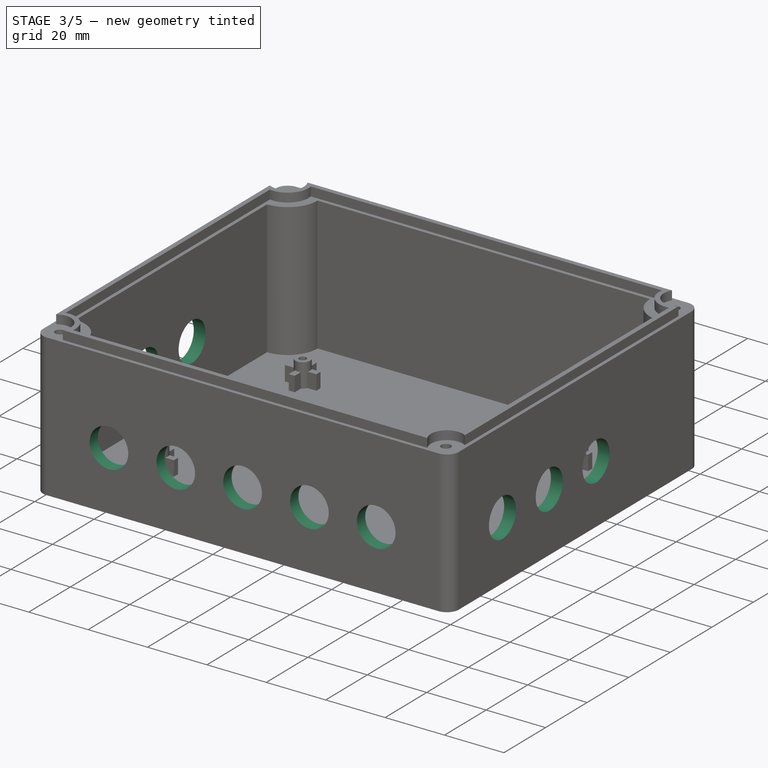
[diagram: stage 3 of 5 — iso view after this stage's code; geometry added in this stage tinted green]
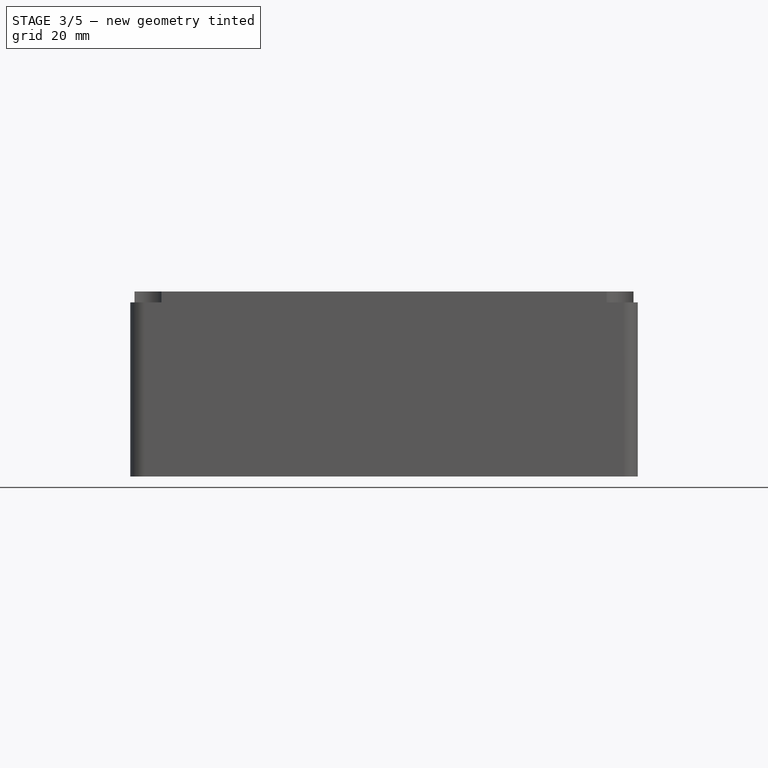
[diagram: stage 3 of 5 — front view after this stage's code; geometry added in this stage tinted green]
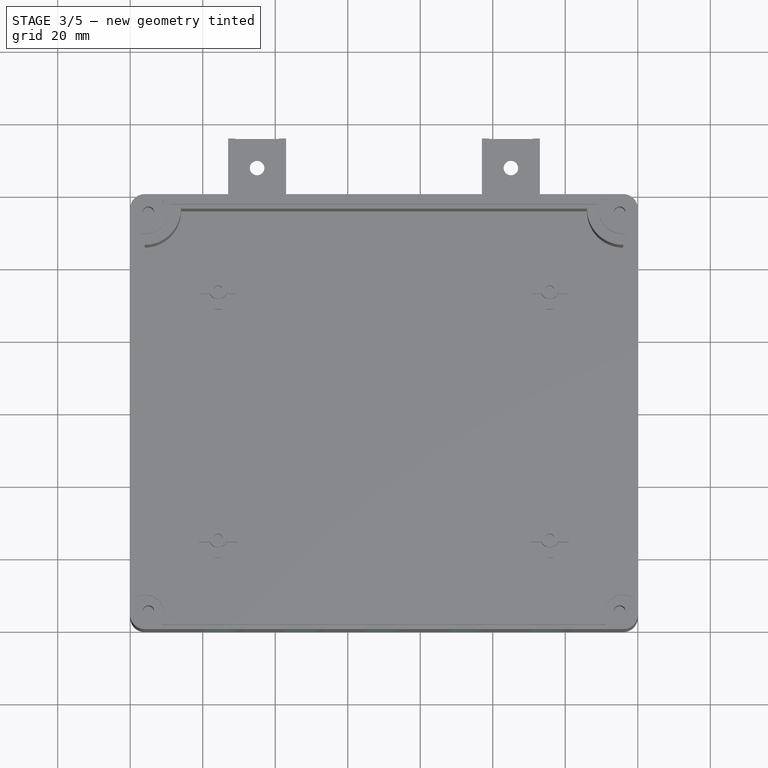
[diagram: stage 3 of 5 — top view after this stage's code; geometry added in this stage tinted green]
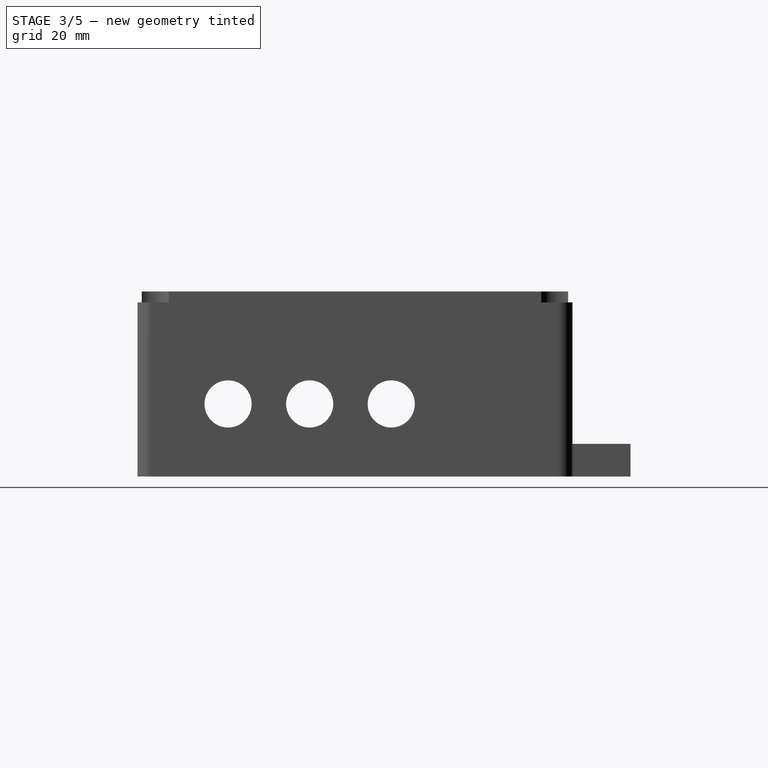
[diagram: stage 3 of 5 — right view after this stage's code; geometry added in this stage tinted green]
FEATURE [Sketcher::SketchObject] Sketch008
  FullyConstrained = true
  MapMode = 5
  Placement = pos=(0,0,0) rot=(1,0,0;1.5708rad)
  Support = -> [Pad006]
  sketch-geometry (6):
    g0: LineSegment StartX=0 StartY=20 StartZ=0 EndX=140 EndY=20 EndZ=0
    g1: Circle CenterX=25 CenterY=20 CenterZ=0 NormalX=0 NormalY=0 NormalZ=1 AngleXU=0 Radius=6.5
    g2: Circle CenterX=47.5 CenterY=20 CenterZ=0 NormalX=0 NormalY=0 NormalZ=1 AngleXU=0 Radius=6.5
    g3: Circle CenterX=70 CenterY=20 CenterZ=0 NormalX=0 NormalY=0 NormalZ=1 AngleXU=0 Radius=6.5
    g4: Circle CenterX=92.5 CenterY=20 CenterZ=0 NormalX=0 NormalY=0 NormalZ=1 AngleXU=0 Radius=6.5
    g5: Circle CenterX=115 CenterY=20 CenterZ=0 NormalX=0 NormalY=0 NormalZ=1 AngleXU=0 Radius=6.5
  constraints (19):
    c: PointOnObject(g0,g-2)
    c: Horizontal(g0)
    c: PointOnObject(g1,g0)
    c: Radius(g1) = 6.5
    c: DistanceY(g-1,g0) = 20
    c: Equal(g1,g2) = 6.5
    c: PointOnObject(g2,g0)
    c: Equal(g1,g3) = 6.5
    c: PointOnObject(g3,g0)
    c: Equal(g1,g4) = 6.5
    c: PointOnObject(g4,g0)
    c: Equal(g1,g5) = 6.5
    c: PointOnObject(g5,g0)
    c: DistanceX(g4,g5) = 22.5
    c: DistanceX(g3,g4) = 22.5
    c: DistanceX(g2,g3) = 22.5
    c: DistanceX(g1,g2) = 22.5
    c: DistanceX(g-1,g1) = 25
    c: DistanceX(g0,g0) = 140
FEATURE [PartDesign::Pocket] Pocket001
  BaseFeature = -> Pad006
  Length = 4
  Length2 = 100
  Profile = -> Sketch008
  Type = 0
FEATURE [Sketcher::SketchObject] Sketch009
  FullyConstrained = true
  MapMode = 5
  Placement = pos=(0,0,0) rot=(0.57735,-0.57735,-0.57735;2.0944rad)
  Support = -> [Pocket001]
  sketch-geometry (4):
    g0: LineSegment StartX=0 StartY=20 StartZ=0 EndX=-120 EndY=20 EndZ=0
    g1: Circle CenterX=-70 CenterY=20 CenterZ=0 NormalX=0 NormalY=0 NormalZ=1 AngleXU=0 Radius=6.5
    g2: Circle CenterX=-47.5 CenterY=20 CenterZ=0 NormalX=0 NormalY=0 NormalZ=1 AngleXU=0 Radius=6.5
    g3: Circle CenterX=-25 CenterY=20 CenterZ=0 NormalX=0 NormalY=0 NormalZ=1 AngleXU=0 Radius=6.5
  constraints (13):
    c: PointOnObject(g0,g-2)
    c: Horizontal(g0)
    c: DistanceX(g0,g0) = 120
    c: DistanceY(g-1,g0) = 20
    c: PointOnObject(g1,g0)
    c: PointOnObject(g2,g0)
    c: PointOnObject(g3,g0)
    c: DistanceX(g3,g0) = 25
    c: DistanceX(g2,g3) = 22.5
    c: DistanceX(g1,g2) = 22.5
    c: Equal(g1,g2)
    c: Equal(g1,g3)
    c: Radius(g1) = 6.5
FEATURE [PartDesign::Pocket] Pocket002
  BaseFeature = -> Pocket001
  Length = 4
  Length2 = 100
  Profile = -> Sketch009
  Type = 0
FEATURE [Sketcher::SketchObject] Sketch010
  FullyConstrained = true
  MapMode = 5
  Placement = pos=(140,0,0) rot=(0.57735,0.57735,0.57735;2.0944rad)
  Support = -> [Pocket002]
  sketch-geometry (4):
    g0: LineSegment StartX=0 StartY=20 StartZ=0 EndX=120 EndY=20 EndZ=0
    g1: Circle CenterX=25 CenterY=20 CenterZ=0 NormalX=0 NormalY=0 NormalZ=1 AngleXU=0 Radius=6.5
    g2: Circle CenterX=47.5 CenterY=20 CenterZ=0 NormalX=0 NormalY=0 NormalZ=1 AngleXU=0 Radius=6.5
    g3: Circle CenterX=70 CenterY=20 CenterZ=0 NormalX=0 NormalY=0 NormalZ=1 AngleXU=0 Radius=6.5
  constraints (13):
    c: PointOnObject(g0,g-2)
    c: Horizontal(g0)
    c: DistanceX(g0,g0) = 120
    c: DistanceY(g-1,g0) = 20
    c: PointOnObject(g1,g0)
    c: PointOnObject(g2,g0)
    c: PointOnObject(g3,g0)
    c: DistanceX(g0,g1) = 25
    c: DistanceX(g1,g2) = 22.5
    c: DistanceX(g2,g3) = 22.5
    c: Equal(g1,g2)
    c: Equal(g1,g3)
    c: Radius(g1) = 6.5
FEATURE [PartDesign::Pocket] Pocket003
  BaseFeature = -> Pocket002
  Length = 4
  Length2 = 100
  Profile = -> Sketch010
  Type = 0
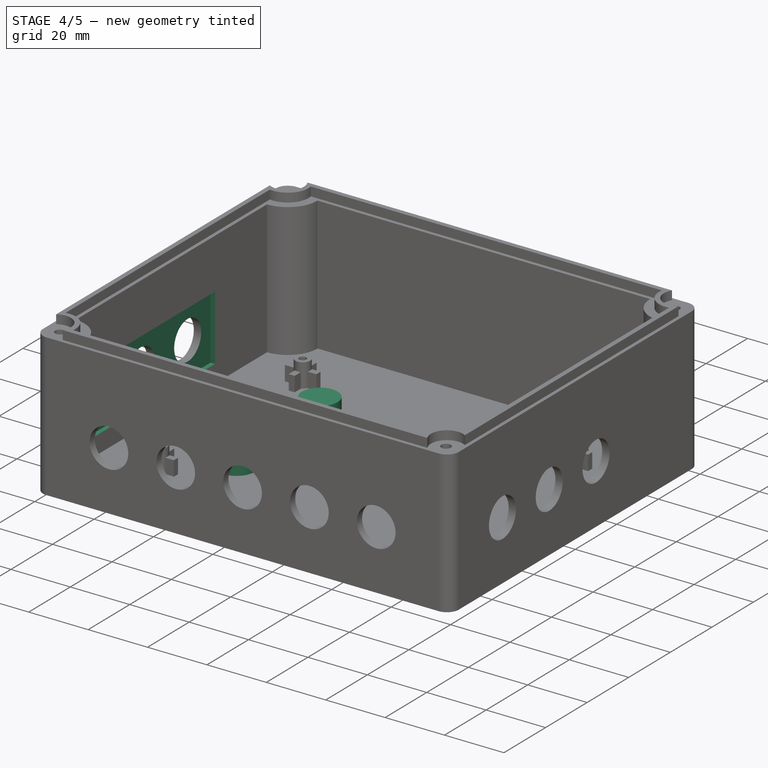
[diagram: stage 4 of 5 — iso view after this stage's code; geometry added in this stage tinted green]
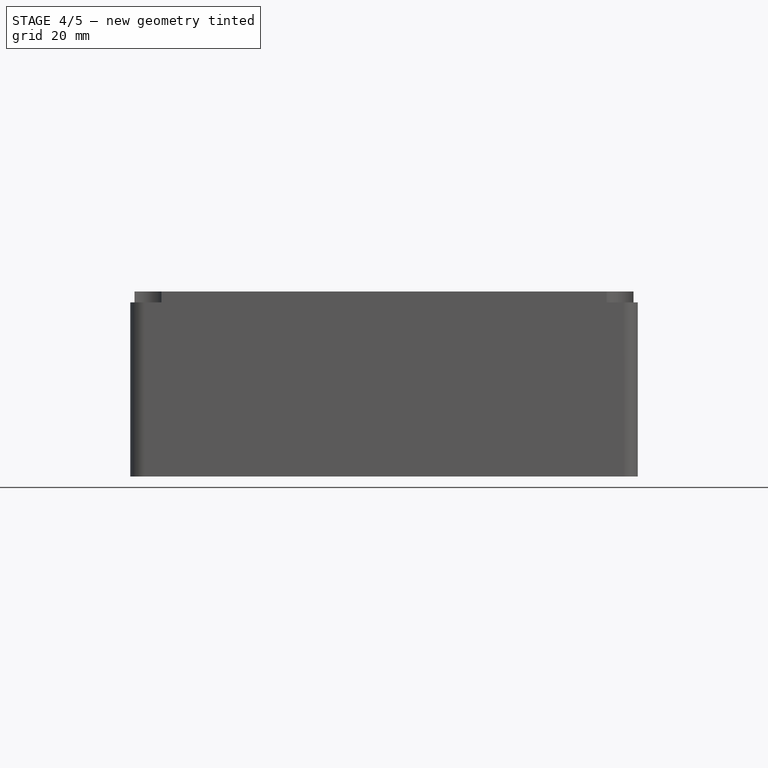
[diagram: stage 4 of 5 — front view after this stage's code; geometry added in this stage tinted green]
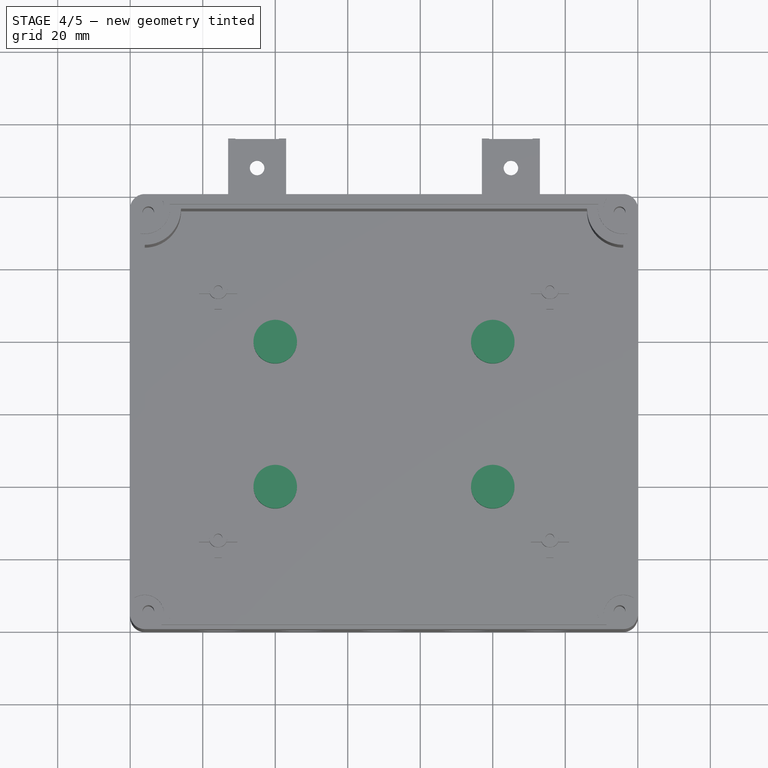
[diagram: stage 4 of 5 — top view after this stage's code; geometry added in this stage tinted green]
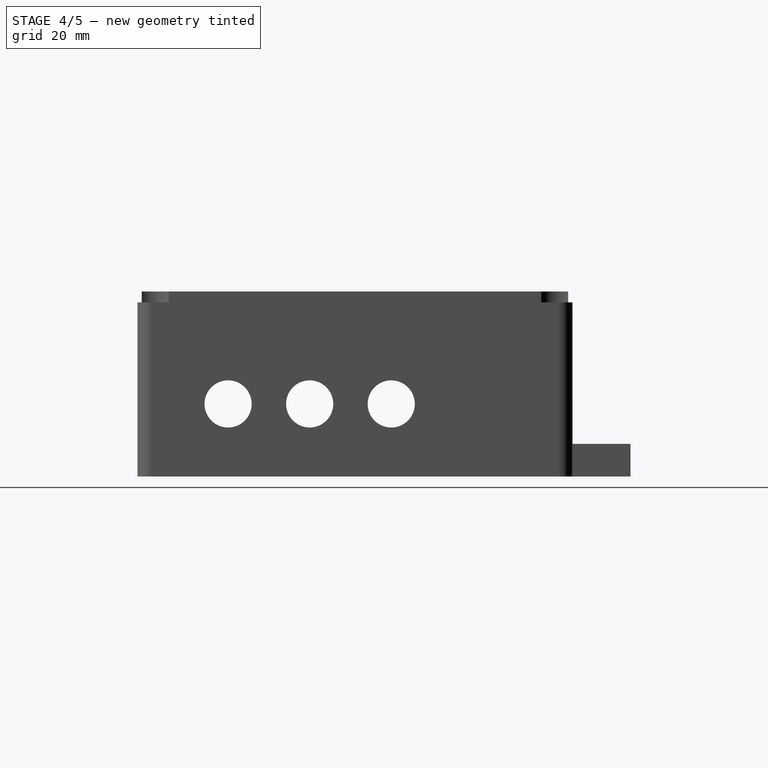
[diagram: stage 4 of 5 — right view after this stage's code; geometry added in this stage tinted green]
FEATURE [Sketcher::SketchObject] Sketch011
  FullyConstrained = true
  MapMode = 5
  Placement = pos=(136,0,0) rot=(0.57735,-0.57735,-0.57735;2.0944rad)
  Support = -> [Pocket003]
  sketch-geometry (4):
    g0: LineSegment StartX=-81 StartY=31 StartZ=0 EndX=-14 EndY=31 EndZ=0
    g1: LineSegment StartX=-14 StartY=31 StartZ=0 EndX=-14 EndY=9 EndZ=0
    g2: LineSegment StartX=-14 StartY=9 StartZ=0 EndX=-81 EndY=9 EndZ=0
    g3: LineSegment StartX=-81 StartY=9 StartZ=0 EndX=-81 EndY=31 EndZ=0
  constraints (12):
    c: Coincident(g0,g1)
    c: Coincident(g1,g2)
    c: Coincident(g2,g3)
    c: Coincident(g3,g0)
    c: Horizontal(g0)
    c: Horizontal(g2)
    c: Vertical(g1)
    c: Vertical(g3)
    c: DistanceX(g1,g-1) = 14
    c: DistanceX(g0,g0) = 67
    c: DistanceY(g-1,g1) = 9
    c: DistanceY(g3,g3) = 22
FEATURE [PartDesign::Pocket] Pocket004
  BaseFeature = -> Pocket003
  Length = 1.5
  Length2 = 100
  Profile = -> Sketch011
  Type = 0
FEATURE [Sketcher::SketchObject] Sketch012
  FullyConstrained = true
  MapMode = 5
  Placement = pos=(0,4,0) rot=(0,0.707107,0.707107;3.14159rad)
  Support = -> [Pocket004]
  sketch-geometry (4):
    g0: LineSegment StartX=-126 StartY=31 StartZ=0 EndX=-14 EndY=31 EndZ=0
    g1: LineSegment StartX=-14 StartY=31 StartZ=0 EndX=-14 EndY=9 EndZ=0
    g2: LineSegment StartX=-14 StartY=9 StartZ=0 EndX=-126 EndY=9 EndZ=0
    g3: LineSegment StartX=-126 StartY=9 StartZ=0 EndX=-126 EndY=31 EndZ=0
  constraints (12):
    c: Coincident(g0,g1)
    c: Coincident(g1,g2)
    c: Coincident(g2,g3)
    c: Coincident(g3,g0)
    c: Horizontal(g0)
    c: Horizontal(g2)
    c: Vertical(g1)
    c: Vertical(g3)
    c: DistanceX(g1,g-1) = 14
    c: DistanceX(g0,g0) = 112
    c: DistanceY(g-1,g1) = 9
    c: DistanceY(g3,g3) = 22
FEATURE [PartDesign::Pocket] Pocket005
  BaseFeature = -> Pocket004
  Length = 1.5
  Length2 = 100
  Profile = -> Sketch012
  Type = 0
FEATURE [Sketcher::SketchObject] Sketch013
  FullyConstrained = true
  MapMode = 5
  Placement = pos=(4,0,0) rot=(0.57735,0.57735,0.57735;2.0944rad)
  Support = -> [Pocket005]
  sketch-geometry (4):
    g0: LineSegment StartX=14 StartY=31 StartZ=0 EndX=81 EndY=31 EndZ=0
    g1: LineSegment StartX=81 StartY=31 StartZ=0 EndX=81 EndY=9 EndZ=0
    g2: LineSegment StartX=81 StartY=9 StartZ=0 EndX=14 EndY=9 EndZ=0
    g3: LineSegment StartX=14 StartY=9 StartZ=0 EndX=14 EndY=31 EndZ=0
  constraints (12):
    c: Coincident(g0,g1)
    c: Coincident(g1,g2)
    c: Coincident(g2,g3)
    c: Coincident(g3,g0)
    c: Horizontal(g0)
    c: Horizontal(g2)
    c: Vertical(g1)
    c: Vertical(g3)
    c: DistanceX(g-1,g2) = 14
    c: DistanceX(g0,g0) = 67
    c: DistanceY(g1,g1) = 22
    c: DistanceY(g-1,g2) = 9
FEATURE [PartDesign::Pocket] Pocket006
  BaseFeature = -> Pocket005
  Length = 1.5
  Length2 = 100
  Profile = -> Sketch013
  Type = 0
FEATURE [Sketcher::SketchObject] Sketch014
  FullyConstrained = true
  MapMode = 5
  Placement = pos=(0,0,3) rot=(0,0,1;0rad)
  Support = -> [Pocket006]
  sketch-geometry (8):
    g0: LineSegment StartX=40 StartY=80 StartZ=0 EndX=100 EndY=80 EndZ=0
    g1: LineSegment StartX=100 StartY=80 StartZ=0 EndX=100 EndY=40 EndZ=0
    g2: LineSegment StartX=100 StartY=40 StartZ=0 EndX=40 EndY=40 EndZ=0
    g3: LineSegment StartX=40 StartY=40 StartZ=0 EndX=40 EndY=80 EndZ=0
    g4: Circle CenterX=40 CenterY=80 CenterZ=0 NormalX=0 NormalY=0 NormalZ=1 AngleXU=0 Radius=6
    g5: Circle CenterX=100 CenterY=80 CenterZ=0 NormalX=0 NormalY=0 NormalZ=1 AngleXU=0 Radius=6
    g6: Circle CenterX=100 CenterY=40 CenterZ=0 NormalX=0 NormalY=0 NormalZ=1 AngleXU=0 Radius=6
    g7: Circle CenterX=40 CenterY=40 CenterZ=0 NormalX=0 NormalY=0 NormalZ=1 AngleXU=0 Radius=6
  constraints (20):
    c: Coincident(g0,g1)
    c: Coincident(g1,g2)
    c: Coincident(g2,g3)
    c: Coincident(g3,g0)
    c: Horizontal(g0)
    c: Horizontal(g2)
    c: Vertical(g1)
    c: Vertical(g3)
    c: Coincident(g4,g0)
    c: Coincident(g5,g0)
    c: Coincident(g6,g1)
    c: Coincident(g7,g2)
    c: Equal(g4,g7)
    c: Equal(g4,g5)
    c: Equal(g4,g6)
    c: Radius(g4) = 6
    c: DistanceX(g0,g0) = 60
    c: DistanceY(g3,g3) = 40
    c: DistanceY(g-1,g7) = 40
    c: DistanceX(g-1,g7) = 40
FEATURE [PartDesign::Pad] Pad007
  BaseFeature = -> Pocket006
  Direction = (1,1,1)
  Length = 6
  Length2 = 100
  Profile = -> Sketch014
  Type = 0
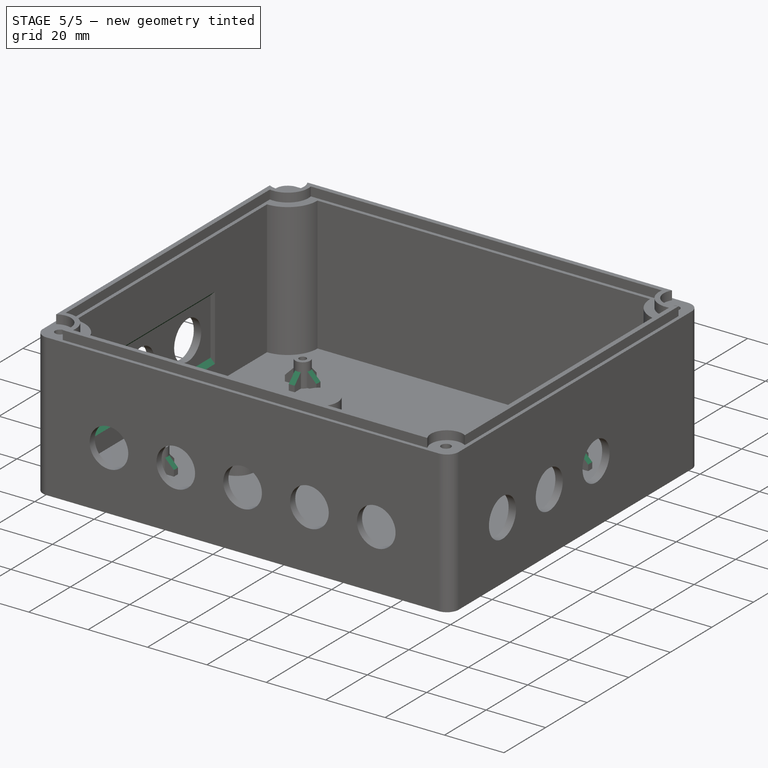
[diagram: stage 5 of 5 — iso view after this stage's code; geometry added in this stage tinted green]
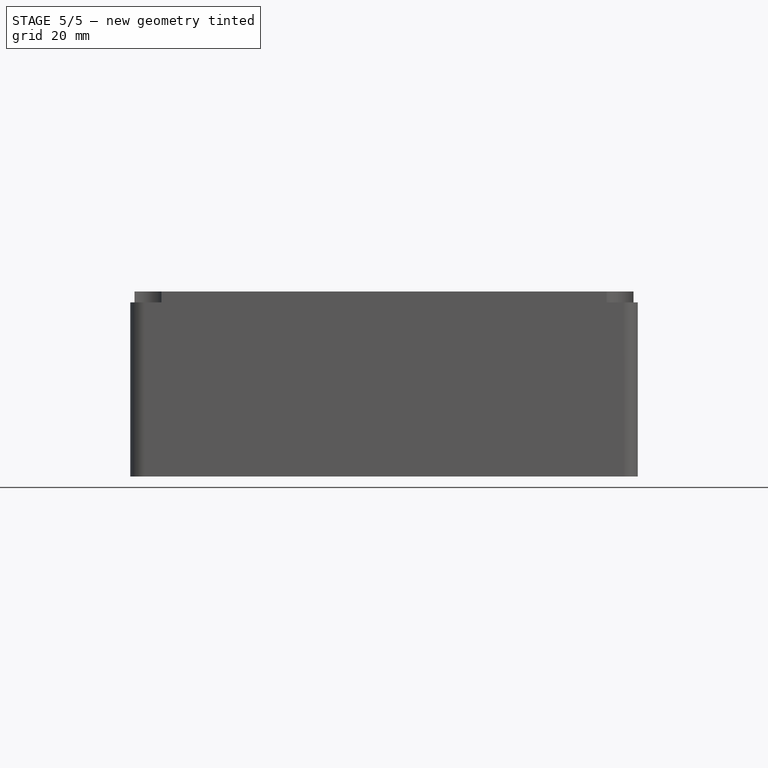
[diagram: stage 5 of 5 — front view after this stage's code; geometry added in this stage tinted green]
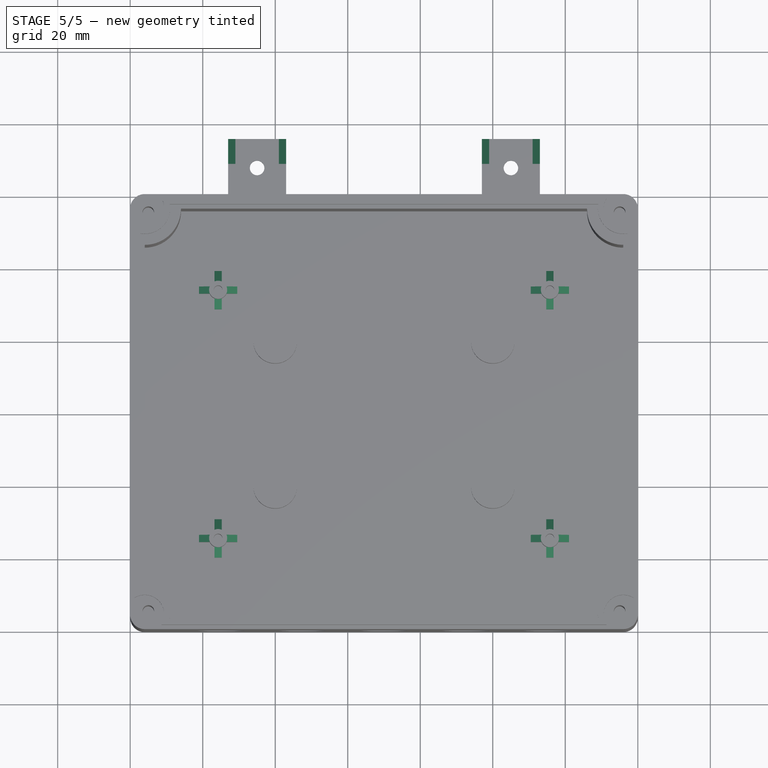
[diagram: stage 5 of 5 — top view after this stage's code; geometry added in this stage tinted green]
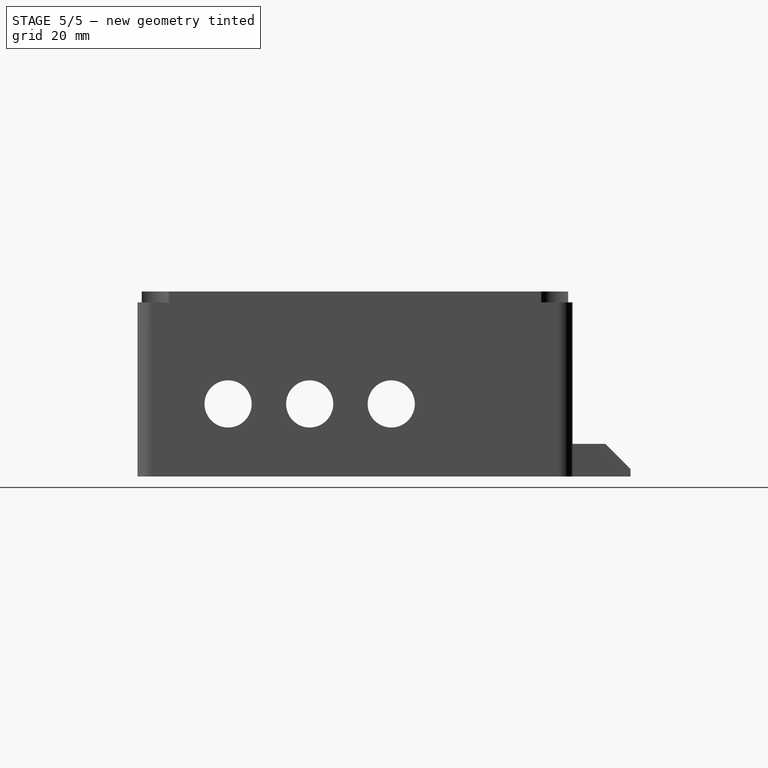
[diagram: stage 5 of 5 — right view after this stage's code; geometry added in this stage tinted green]
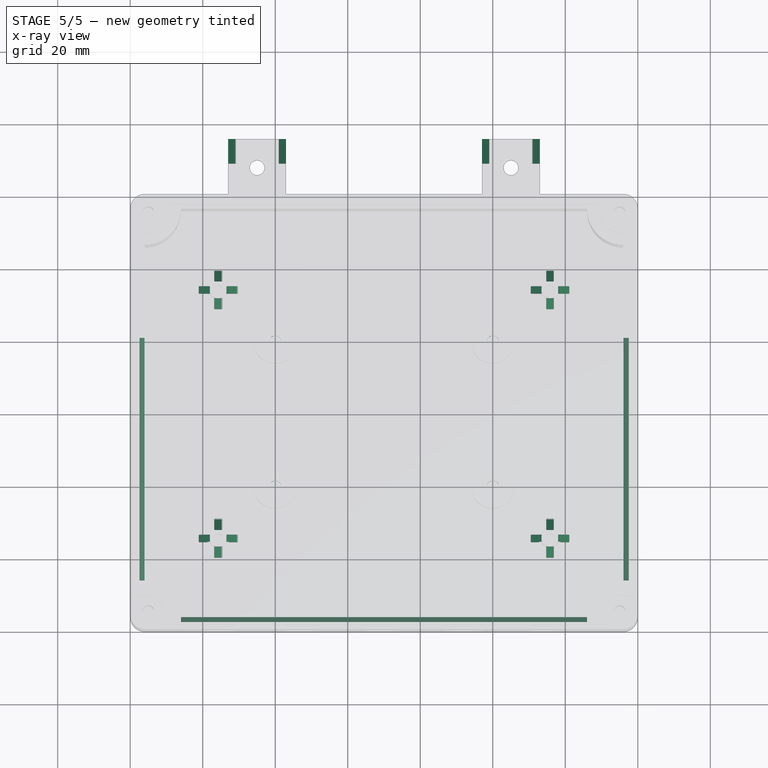
[diagram: stage 5 of 5 — x-ray composite at the top view; earlier geometry ghosted, this stage's added geometry solid]
FEATURE [Sketcher::SketchObject] Sketch015
  FullyConstrained = true
  MapMode = 5
  Placement = pos=(0,0,0) rot=(1,0,0;3.14159rad)
  Support = -> [Pad007]
  sketch-geometry (8):
    g0: LineSegment StartX=40 StartY=-40 StartZ=0 EndX=100 EndY=-40 EndZ=0
    g1: LineSegment StartX=100 StartY=-40 StartZ=0 EndX=100 EndY=-80 EndZ=0
    g2: LineSegment StartX=100 StartY=-80 StartZ=0 EndX=40 EndY=-80 EndZ=0
    g3: LineSegment StartX=40 StartY=-80 StartZ=0 EndX=40 EndY=-40 EndZ=0
    g4: Circle CenterX=40 CenterY=-40 CenterZ=0 NormalX=0 NormalY=0 NormalZ=1 AngleXU=0 Radius=1.65
    g5: Circle CenterX=100 CenterY=-40 CenterZ=0 NormalX=0 NormalY=0 NormalZ=1 AngleXU=0 Radius=1.65
    g6: Circle CenterX=100 CenterY=-80 CenterZ=0 NormalX=0 NormalY=0 NormalZ=1 AngleXU=0 Radius=1.65
    g7: Circle CenterX=40 CenterY=-80 CenterZ=0 NormalX=0 NormalY=0 NormalZ=1 AngleXU=0 Radius=1.65
  constraints (20):
    c: Coincident(g0,g1)
    c: Coincident(g1,g2)
    c: Coincident(g2,g3)
    c: Coincident(g3,g0)
    c: Horizontal(g0)
    c: Horizontal(g2)
    c: Vertical(g1)
    c: Vertical(g3)
    c: Coincident(g4,g0)
    c: Coincident(g5,g0)
    c: Coincident(g6,g1)
    c: Coincident(g7,g2)
    c: Equal(g4,g7)
    c: Equal(g4,g5)
    c: Equal(g4,g6)
    c: Radius(g4) = 1.65
    c: DistanceY(g3,g3) = 40
    c: DistanceX(g2,g2) = 60
    c: DistanceX(g-1,g4) = 40
    c: DistanceY(g4,g-1) = 40
FEATURE [PartDesign::Pocket] Pocket007
  BaseFeature = -> Pad007
  Length = 6
  Length2 = 100
  Profile = -> Sketch015
  Type = 0
FEATURE [PartDesign::Chamfer] Chamfer
  Angle = 45
  Base = -> Pocket007 [Edge430,Edge420,Edge432,Edge422,Edge506,Edge496,Edge498,Edge508,Edge459,Edge469,Edge471,Edge461,Edge383,Edge393,Edge385,Edge395]
  BaseFeature = -> Pocket007
  ChamferType = 0
  FlipDirection = false
  Size = 3
  Size2 = 1
  SupportTransform = false
FEATURE [PartDesign::Chamfer] Chamfer001
  Angle = 45
  Base = -> Chamfer [Edge504,Edge494,Edge483,Edge473]
  BaseFeature = -> Chamfer
  ChamferType = 0
  FlipDirection = false
  Size = 6.99
  Size2 = 1
  SupportTransform = false
FEATURE [PartDesign::Chamfer] Chamfer002
  Angle = 45
  Base = -> Chamfer001 [Edge227,Edge229,Edge235,Edge237,Edge231,Edge233]
  BaseFeature = -> Chamfer001
  ChamferType = 0
  FlipDirection = false
  Size = 1.49
  Size2 = 1
  SupportTransform = false
FEATURE [PartDesign::Body] Body
  Group = -> [Sketch,Pad,Sketch001,Pad001,Sketch002,Pad002,Sketch003,Pad003,Sketch004,Pocket,Sketch005,Pad004,Sketch006,Pad005,Sketch007,Pad006,Sketch008,Pocket001,Sketch009,Pocket002,Sketch010,Pocket003,Sketch011,Pocket004,Sketch012,Pocket005,Sketch013,Pocket006,Sketch014,Pad007,Sketch015,Pocket007,Chamfer,Chamfer001,Chamfer002]
  Origin = -> Origin
  Tip = -> Chamfer002
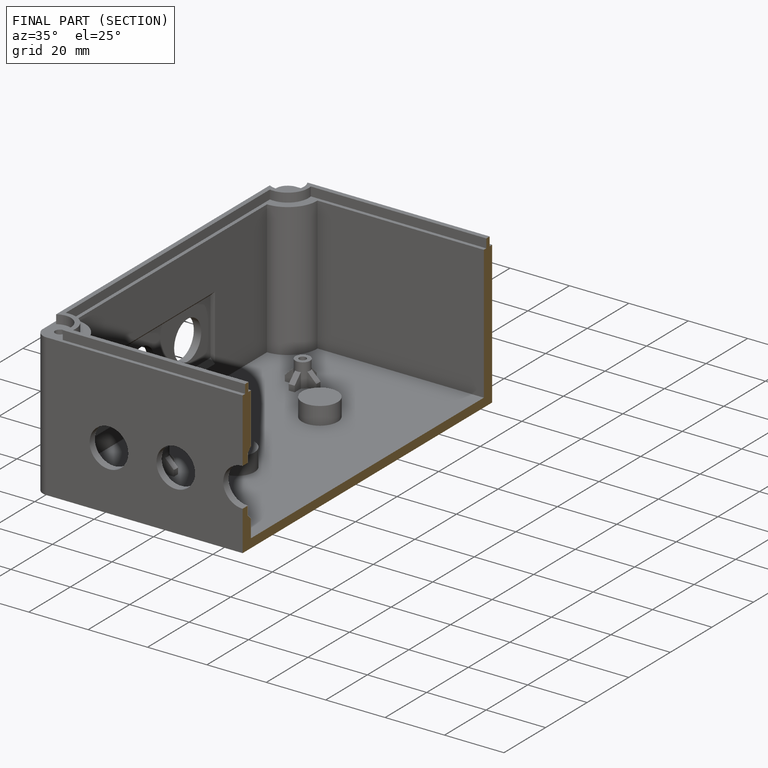
[diagram: finished part — half-section view (interior)]
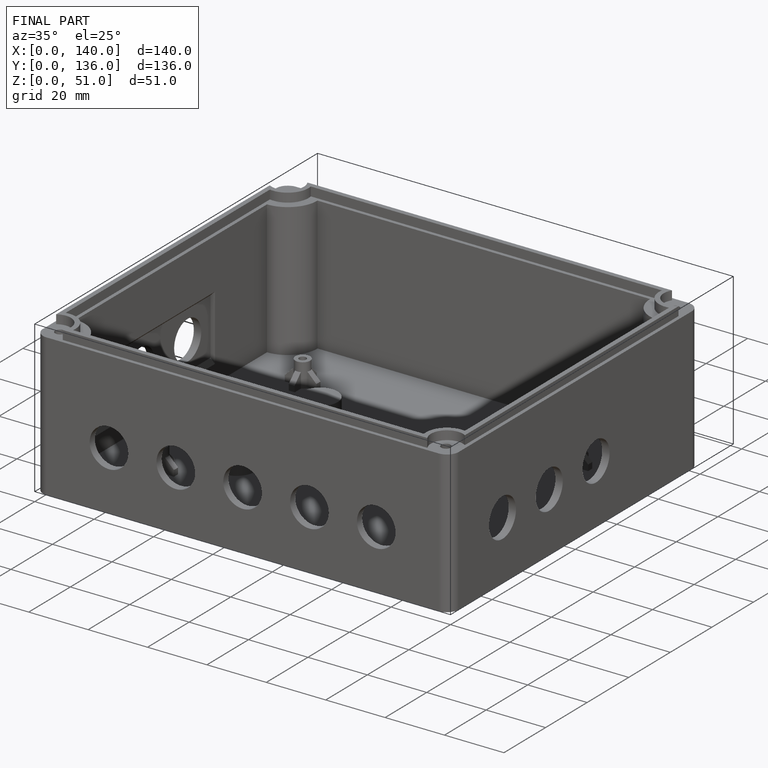
[diagram: finished part — iso view with bounding-box wireframe]
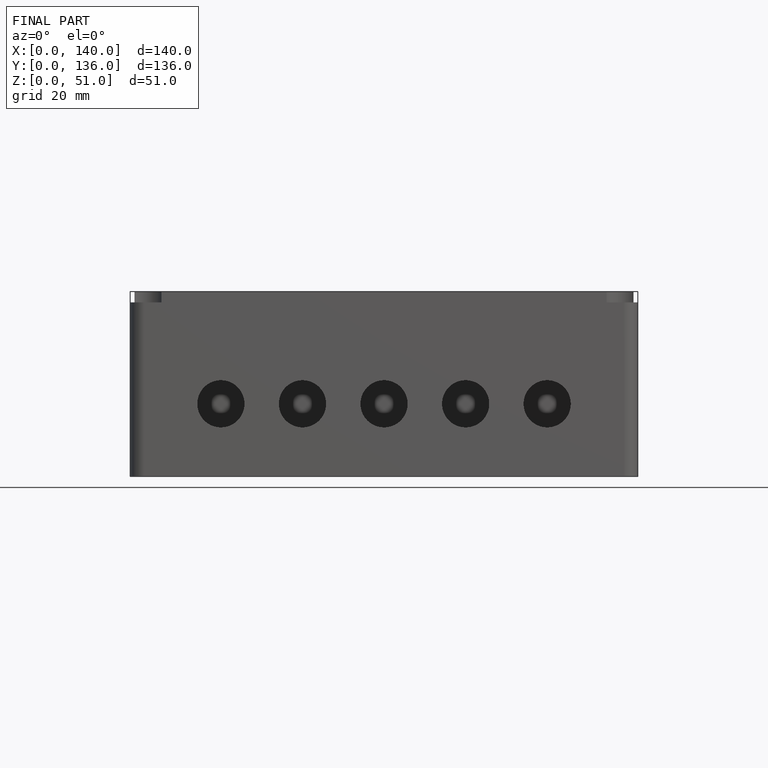
[diagram: finished part — front view with bounding-box wireframe]
